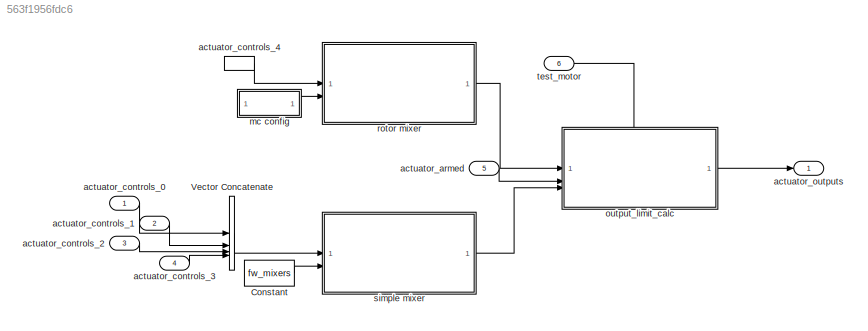
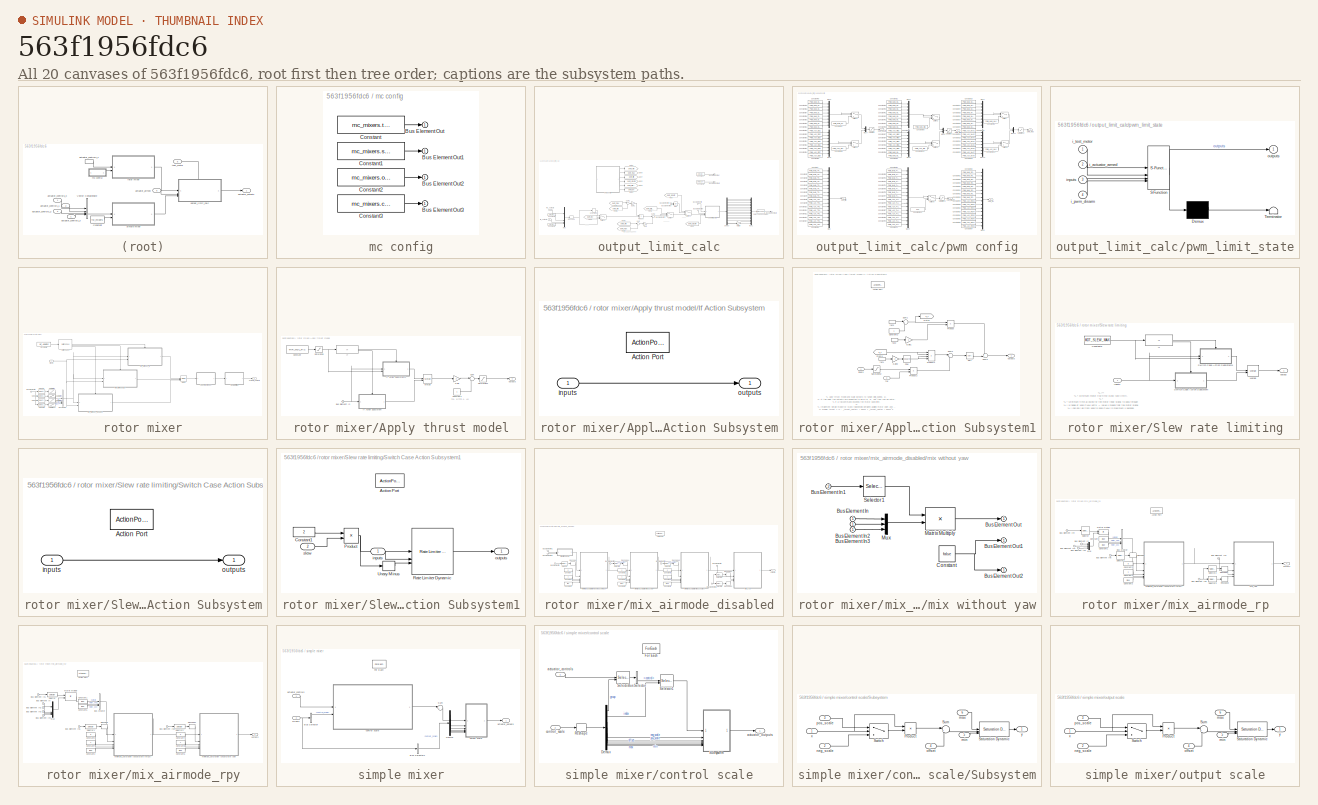
[diagram: thumbnail index - all 20 canvases of the model, root first then tree order]
MODEL slx_563f1956fdc6
KIND model
CONFIG AbsTol = auto
CONFIG EnableMultiTasking = off
CONFIG FixedStep = auto
CONFIG MaxStep = auto
CONFIG MinStep = auto
CONFIG RelTol = 1e-3
CONFIG SampleTimeConstraint = Unconstrained
CONFIG SolverName = VariableStepAuto
CONFIG StartTime = 0.0
CONFIG StopTime = 10.0
BLOCK [Constant] Constant
  OutDataTypeStr = Bus: fw_mixer_s
  Value = fw_mixers
BLOCK [Concatenate] Vector Concatenate
  NumInputs = 4
BLOCK [Inport] actuator_armed
  OutDataTypeStr = Bus: actuator_armed_s
  Port = 5
BLOCK [Inport] actuator_controls_0
  BusOutputAsStruct = on
  OutDataTypeStr = Bus: actuator_controls_s
BLOCK [Inport] actuator_controls_1
  BusOutputAsStruct = on
  OutDataTypeStr = Bus: actuator_controls_s
  Port = 2
BLOCK [Inport] actuator_controls_2
  BusOutputAsStruct = on
  OutDataTypeStr = Bus: actuator_controls_s
  Port = 3
BLOCK [Inport] actuator_controls_3
  BusOutputAsStruct = on
  OutDataTypeStr = Bus: actuator_controls_s
  Port = 4
BLOCK [InportShadow] actuator_controls_4
  BusOutputAsStruct = on
  OutDataTypeStr = Bus: actuator_controls_s
BLOCK [Outport] actuator_outputs
  OutDataTypeStr = Bus: actuator_outputs_s
BLOCK [SubSystem] mc config
BLOCK [Outport] mc config/Bus Element Out
BLOCK [Outport] mc config/Bus Element Out1
BLOCK [Outport] mc config/Bus Element Out2
BLOCK [Outport] mc config/Bus Element Out3
BLOCK [Constant] mc config/Constant
  Value = mc_mixers.type
BLOCK [Constant] mc config/Constant1
  Value = mc_mixers.slew_rate
BLOCK [Constant] mc config/Constant2
  Value = mc_mixers.output_scale
BLOCK [Constant] mc config/Constant3
  Value = mc_mixers.control_scale
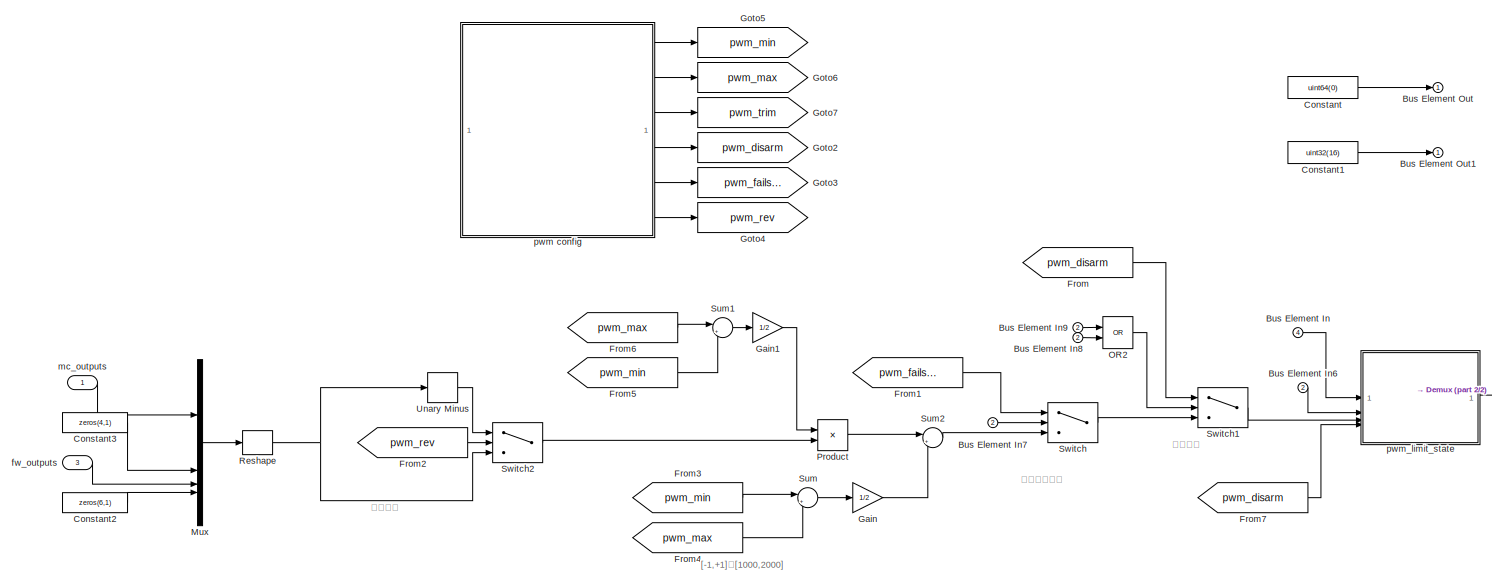
[diagram: output_limit_calc - part 1/2, most of the canvas]
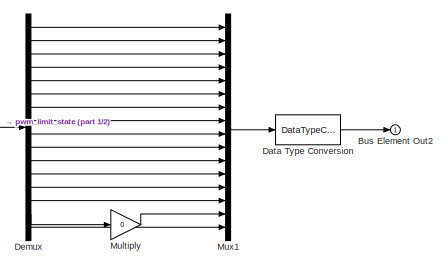
[diagram: output_limit_calc - part 2/2, bottom right region]
BLOCK [SubSystem] output_limit_calc
  PortSchema = {"entries":[{"content":{"sides":[{"content":{"connectorIds":["In1","In2","In3"]},"type":"ConnectorPlacement.EquallySpacedRectSide","uuid":"944c2c9d-30a8-426f-ab3c-b13e46dc869a"},{"content":{"connectorIds":["Out1"],"side":"RIGHT"},"type":"ConnectorPlacement.EquallySpacedRectSide","uuid":"8ff1d5b6-3575-4110-a07a-80dd000ae648"},{"content":{"connectorIds":["In4"],"side":"TOP"},"type":"ConnectorPlaceme...<+257ch>
BLOCK [Inport] output_limit_calc/Bus Element In
  Port = 4
BLOCK [Inport] output_limit_calc/Bus Element In6
  Port = 2
BLOCK [Inport] output_limit_calc/Bus Element In7
  Port = 2
BLOCK [Inport] output_limit_calc/Bus Element In8
  Port = 2
BLOCK [Inport] output_limit_calc/Bus Element In9
  Port = 2
BLOCK [Outport] output_limit_calc/Bus Element Out
BLOCK [Outport] output_limit_calc/Bus Element Out1
BLOCK [Outport] output_limit_calc/Bus Element Out2
BLOCK [Constant] output_limit_calc/Constant
  Value = uint64(0)
BLOCK [Constant] output_limit_calc/Constant1
  Value = uint32(16)
BLOCK [Constant] output_limit_calc/Constant2
  Value = zeros(6,1)
BLOCK [Constant] output_limit_calc/Constant3
  Value = zeros(4,1)
BLOCK [DataTypeConversion] output_limit_calc/Data Type Conversion
  RndMeth = Floor
  SaturateOnIntegerOverflow = off
BLOCK [Demux] output_limit_calc/Demux
  Outputs = 16
BLOCK [From] output_limit_calc/From
  GotoTag = pwm_disarm
BLOCK [From] output_limit_calc/From1
  GotoTag = pwm_failsafe
BLOCK [From] output_limit_calc/From2
  GotoTag = pwm_rev
BLOCK [From] output_limit_calc/From3
  GotoTag = pwm_min
BLOCK [From] output_limit_calc/From4
  GotoTag = pwm_max
BLOCK [From] output_limit_calc/From5
  GotoTag = pwm_min
BLOCK [From] output_limit_calc/From6
  GotoTag = pwm_max
BLOCK [From] output_limit_calc/From7
  GotoTag = pwm_disarm
BLOCK [Gain] output_limit_calc/Gain
  Gain = 1/2
BLOCK [Gain] output_limit_calc/Gain1
  Gain = 1/2
BLOCK [Goto] output_limit_calc/Goto2
  GotoTag = pwm_disarm
BLOCK [Goto] output_limit_calc/Goto3
  GotoTag = pwm_failsafe
BLOCK [Goto] output_limit_calc/Goto4
  GotoTag = pwm_rev
BLOCK [Goto] output_limit_calc/Goto5
  GotoTag = pwm_min
BLOCK [Goto] output_limit_calc/Goto6
  GotoTag = pwm_max
BLOCK [Goto] output_limit_calc/Goto7
  GotoTag = pwm_trim
BLOCK [Gain] output_limit_calc/Multiply
  Gain = 0
BLOCK [Mux] output_limit_calc/Mux
  DisplayOption = bar
BLOCK [Mux] output_limit_calc/Mux1
  DisplayOption = bar
  Inputs = 16
BLOCK [Logic] output_limit_calc/OR2
  AllPortsSameDT = off
  IconShape = distinctive
  Operator = OR
  OutDataTypeStr = boolean
BLOCK [Product] output_limit_calc/Product
BLOCK [Reshape] output_limit_calc/Reshape
BLOCK [Sum] output_limit_calc/Sum
  Inputs = |++
BLOCK [Sum] output_limit_calc/Sum1
  Inputs = |+-
BLOCK [Sum] output_limit_calc/Sum2
  Inputs = |++
BLOCK [Switch] output_limit_calc/Switch
  Criteria = u2 > Threshold
  InputSameDT = off
  SaturateOnIntegerOverflow = off
BLOCK [Switch] output_limit_calc/Switch1
  Criteria = u2 > Threshold
  InputSameDT = off
  SaturateOnIntegerOverflow = off
BLOCK [Switch] output_limit_calc/Switch2
  Criteria = u2 ~= 0
  InputSameDT = off
  SaturateOnIntegerOverflow = off
BLOCK [UnaryMinus] output_limit_calc/Unary Minus
BLOCK [Inport] output_limit_calc/fw_outputs
  Port = 3
BLOCK [Inport] output_limit_calc/mc_outputs
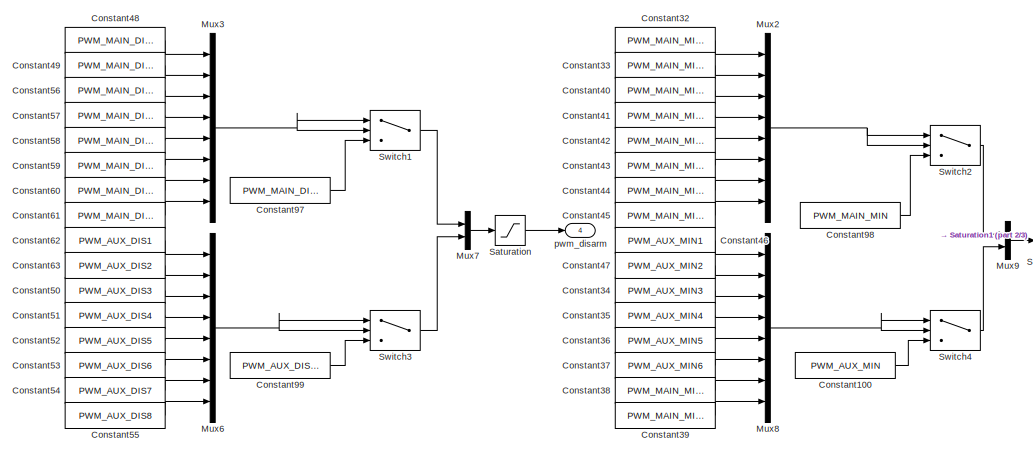
[diagram: output_limit_calc/pwm config - part 1/3, top left region]
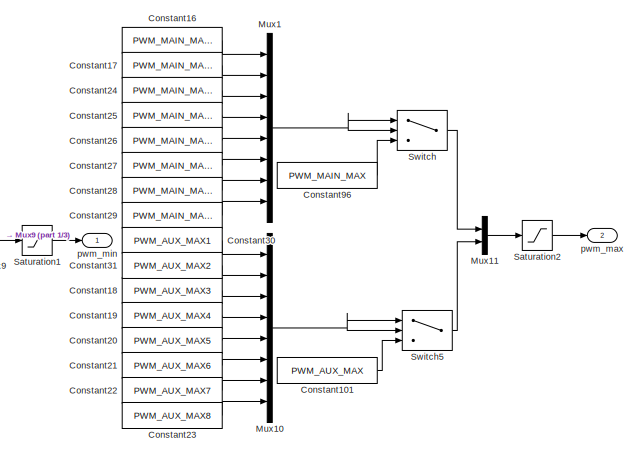
[diagram: output_limit_calc/pwm config - part 2/3, top right region]
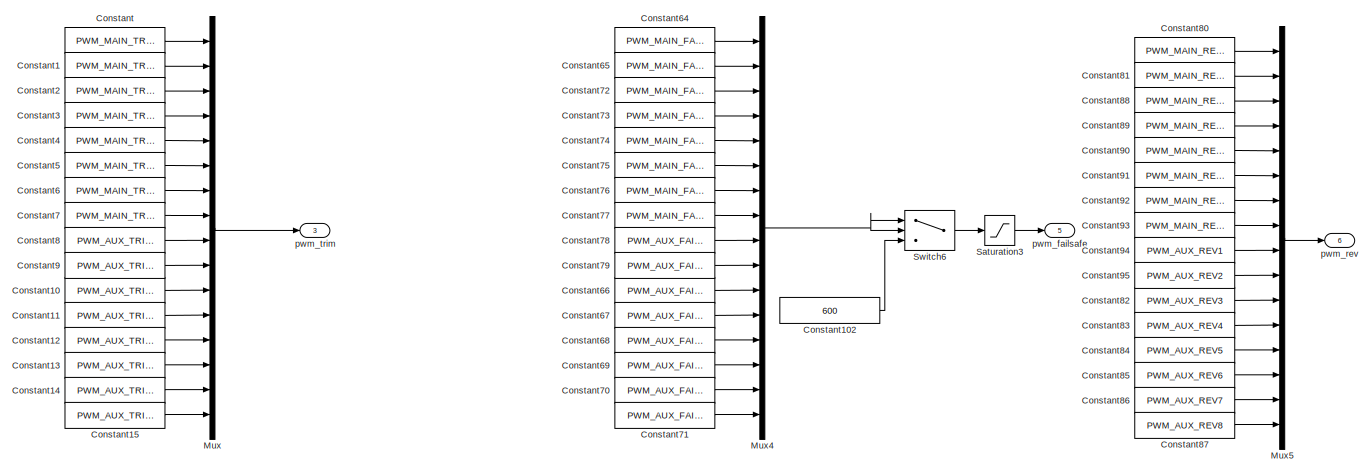
[diagram: output_limit_calc/pwm config - part 3/3, full width, bottom band]
BLOCK [SubSystem] output_limit_calc/pwm config
BLOCK [Constant] output_limit_calc/pwm config/Constant
  Value = PWM_MAIN_TRIM1
BLOCK [Constant] output_limit_calc/pwm config/Constant1
  Value = PWM_MAIN_TRIM2
BLOCK [Constant] output_limit_calc/pwm config/Constant10
  Value = PWM_AUX_TRIM3
BLOCK [Constant] output_limit_calc/pwm config/Constant100
  Value = PWM_AUX_MIN
BLOCK [Constant] output_limit_calc/pwm config/Constant101
  Value = PWM_AUX_MAX
BLOCK [Constant] output_limit_calc/pwm config/Constant102
  OutDataTypeStr = int32
  Value = 600
BLOCK [Constant] output_limit_calc/pwm config/Constant11
  Value = PWM_AUX_TRIM4
BLOCK [Constant] output_limit_calc/pwm config/Constant12
  Value = PWM_AUX_TRIM5
BLOCK [Constant] output_limit_calc/pwm config/Constant13
  Value = PWM_AUX_TRIM6
BLOCK [Constant] output_limit_calc/pwm config/Constant14
  Value = PWM_AUX_TRIM7
BLOCK [Constant] output_limit_calc/pwm config/Constant15
  Value = PWM_AUX_TRIM8
BLOCK [Constant] output_limit_calc/pwm config/Constant16
  Value = PWM_MAIN_MAX1
BLOCK [Constant] output_limit_calc/pwm config/Constant17
  Value = PWM_MAIN_MAX2
BLOCK [Constant] output_limit_calc/pwm config/Constant18
  Value = PWM_AUX_MAX3
BLOCK [Constant] output_limit_calc/pwm config/Constant19
  Value = PWM_AUX_MAX4
BLOCK [Constant] output_limit_calc/pwm config/Constant2
  Value = PWM_MAIN_TRIM3
BLOCK [Constant] output_limit_calc/pwm config/Constant20
  Value = PWM_AUX_MAX5
BLOCK [Constant] output_limit_calc/pwm config/Constant21
  Value = PWM_AUX_MAX6
BLOCK [Constant] output_limit_calc/pwm config/Constant22
  Value = PWM_AUX_MAX7
BLOCK [Constant] output_limit_calc/pwm config/Constant23
  Value = PWM_AUX_MAX8
BLOCK [Constant] output_limit_calc/pwm config/Constant24
  Value = PWM_MAIN_MAX3
BLOCK [Constant] output_limit_calc/pwm config/Constant25
  Value = PWM_MAIN_MAX4
BLOCK [Constant] output_limit_calc/pwm config/Constant26
  Value = PWM_MAIN_MAX5
BLOCK [Constant] output_limit_calc/pwm config/Constant27
  Value = PWM_MAIN_MAX6
BLOCK [Constant] output_limit_calc/pwm config/Constant28
  Value = PWM_MAIN_MAX7
BLOCK [Constant] output_limit_calc/pwm config/Constant29
  Value = PWM_MAIN_MAX8
BLOCK [Constant] output_limit_calc/pwm config/Constant3
  Value = PWM_MAIN_TRIM4
BLOCK [Constant] output_limit_calc/pwm config/Constant30
  Value = PWM_AUX_MAX1
BLOCK [Constant] output_limit_calc/pwm config/Constant31
  Value = PWM_AUX_MAX2
BLOCK [Constant] output_limit_calc/pwm config/Constant32
  Value = PWM_MAIN_MIN1
BLOCK [Constant] output_limit_calc/pwm config/Constant33
  Value = PWM_MAIN_MIN2
BLOCK [Constant] output_limit_calc/pwm config/Constant34
  Value = PWM_AUX_MIN3
BLOCK [Constant] output_limit_calc/pwm config/Constant35
  Value = PWM_AUX_MIN4
BLOCK [Constant] output_limit_calc/pwm config/Constant36
  Value = PWM_AUX_MIN5
BLOCK [Constant] output_limit_calc/pwm config/Constant37
  Value = PWM_AUX_MIN6
BLOCK [Constant] output_limit_calc/pwm config/Constant38
  Value = PWM_MAIN_MIN7
BLOCK [Constant] output_limit_calc/pwm config/Constant39
  Value = PWM_MAIN_MIN8
BLOCK [Constant] output_limit_calc/pwm config/Constant4
  Value = PWM_MAIN_TRIM5
BLOCK [Constant] output_limit_calc/pwm config/Constant40
  Value = PWM_MAIN_MIN3
BLOCK [Constant] output_limit_calc/pwm config/Constant41
  Value = PWM_MAIN_MIN4
BLOCK [Constant] output_limit_calc/pwm config/Constant42
  Value = PWM_MAIN_MIN5
BLOCK [Constant] output_limit_calc/pwm config/Constant43
  Value = PWM_MAIN_MIN6
BLOCK [Constant] output_limit_calc/pwm config/Constant44
  Value = PWM_MAIN_MIN7
BLOCK [Constant] output_limit_calc/pwm config/Constant45
  Value = PWM_MAIN_MIN8
BLOCK [Constant] output_limit_calc/pwm config/Constant46
  Value = PWM_AUX_MIN1
BLOCK [Constant] output_limit_calc/pwm config/Constant47
  Value = PWM_AUX_MIN2
BLOCK [Constant] output_limit_calc/pwm config/Constant48
  Value = PWM_MAIN_DIS1
BLOCK [Constant] output_limit_calc/pwm config/Constant49
  Value = PWM_MAIN_DIS2
BLOCK [Constant] output_limit_calc/pwm config/Constant5
  Value = PWM_MAIN_TRIM6
BLOCK [Constant] output_limit_calc/pwm config/Constant50
  Value = PWM_AUX_DIS3
BLOCK [Constant] output_limit_calc/pwm config/Constant51
  Value = PWM_AUX_DIS4
BLOCK [Constant] output_limit_calc/pwm config/Constant52
  Value = PWM_AUX_DIS5
BLOCK [Constant] output_limit_calc/pwm config/Constant53
  Value = PWM_AUX_DIS6
BLOCK [Constant] output_limit_calc/pwm config/Constant54
  Value = PWM_AUX_DIS7
BLOCK [Constant] output_limit_calc/pwm config/Constant55
  Value = PWM_AUX_DIS8
BLOCK [Constant] output_limit_calc/pwm config/Constant56
  Value = PWM_MAIN_DIS3
BLOCK [Constant] output_limit_calc/pwm config/Constant57
  Value = PWM_MAIN_DIS4
BLOCK [Constant] output_limit_calc/pwm config/Constant58
  Value = PWM_MAIN_DIS5
BLOCK [Constant] output_limit_calc/pwm config/Constant59
  Value = PWM_MAIN_DIS6
BLOCK [Constant] output_limit_calc/pwm config/Constant6
  Value = PWM_MAIN_TRIM7
BLOCK [Constant] output_limit_calc/pwm config/Constant60
  Value = PWM_MAIN_DIS7
BLOCK [Constant] output_limit_calc/pwm config/Constant61
  Value = PWM_MAIN_DIS8
BLOCK [Constant] output_limit_calc/pwm config/Constant62
  Value = PWM_AUX_DIS1
BLOCK [Constant] output_limit_calc/pwm config/Constant63
  Value = PWM_AUX_DIS2
BLOCK [Constant] output_limit_calc/pwm config/Constant64
  Value = PWM_MAIN_FAIL1
BLOCK [Constant] output_limit_calc/pwm config/Constant65
  Value = PWM_MAIN_FAIL2
BLOCK [Constant] output_limit_calc/pwm config/Constant66
  Value = PWM_AUX_FAIL3
BLOCK [Constant] output_limit_calc/pwm config/Constant67
  Value = PWM_AUX_FAIL4
BLOCK [Constant] output_limit_calc/pwm config/Constant68
  Value = PWM_AUX_FAIL5
BLOCK [Constant] output_limit_calc/pwm config/Constant69
  Value = PWM_AUX_FAIL6
BLOCK [Constant] output_limit_calc/pwm config/Constant7
  Value = PWM_MAIN_TRIM8
BLOCK [Constant] output_limit_calc/pwm config/Constant70
  Value = PWM_AUX_FAIL7
BLOCK [Constant] output_limit_calc/pwm config/Constant71
  Value = PWM_AUX_FAIL8
BLOCK [Constant] output_limit_calc/pwm config/Constant72
  Value = PWM_MAIN_FAIL3
BLOCK [Constant] output_limit_calc/pwm config/Constant73
  Value = PWM_MAIN_FAIL4
BLOCK [Constant] output_limit_calc/pwm config/Constant74
  Value = PWM_MAIN_FAIL5
BLOCK [Constant] output_limit_calc/pwm config/Constant75
  Value = PWM_MAIN_FAIL6
BLOCK [Constant] output_limit_calc/pwm config/Constant76
  Value = PWM_MAIN_FAIL7
BLOCK [Constant] output_limit_calc/pwm config/Constant77
  Value = PWM_MAIN_FAIL8
BLOCK [Constant] output_limit_calc/pwm config/Constant78
  Value = PWM_AUX_FAIL1
BLOCK [Constant] output_limit_calc/pwm config/Constant79
  Value = PWM_AUX_FAIL2
BLOCK [Constant] output_limit_calc/pwm config/Constant8
  Value = PWM_AUX_TRIM1
BLOCK [Constant] output_limit_calc/pwm config/Constant80
  Value = PWM_MAIN_REV1
BLOCK [Constant] output_limit_calc/pwm config/Constant81
  Value = PWM_MAIN_REV2
BLOCK [Constant] output_limit_calc/pwm config/Constant82
  Value = PWM_AUX_REV3
BLOCK [Constant] output_limit_calc/pwm config/Constant83
  Value = PWM_AUX_REV4
BLOCK [Constant] output_limit_calc/pwm config/Constant84
  Value = PWM_AUX_REV5
BLOCK [Constant] output_limit_calc/pwm config/Constant85
  Value = PWM_AUX_REV6
BLOCK [Constant] output_limit_calc/pwm config/Constant86
  Value = PWM_AUX_REV7
BLOCK [Constant] output_limit_calc/pwm config/Constant87
  Value = PWM_AUX_REV8
BLOCK [Constant] output_limit_calc/pwm config/Constant88
  Value = PWM_MAIN_REV3
BLOCK [Constant] output_limit_calc/pwm config/Constant89
  Value = PWM_MAIN_REV4
BLOCK [Constant] output_limit_calc/pwm config/Constant9
  Value = PWM_AUX_TRIM2
BLOCK [Constant] output_limit_calc/pwm config/Constant90
  Value = PWM_MAIN_REV5
BLOCK [Constant] output_limit_calc/pwm config/Constant91
  Value = PWM_MAIN_REV6
BLOCK [Constant] output_limit_calc/pwm config/Constant92
  Value = PWM_MAIN_REV7
BLOCK [Constant] output_limit_calc/pwm config/Constant93
  Value = PWM_MAIN_REV8
BLOCK [Constant] output_limit_calc/pwm config/Constant94
  Value = PWM_AUX_REV1
BLOCK [Constant] output_limit_calc/pwm config/Constant95
  Value = PWM_AUX_REV2
BLOCK [Constant] output_limit_calc/pwm config/Constant96
  Value = PWM_MAIN_MAX
BLOCK [Constant] output_limit_calc/pwm config/Constant97
  Value = PWM_MAIN_DISARM
BLOCK [Constant] output_limit_calc/pwm config/Constant98
  Value = PWM_MAIN_MIN
BLOCK [Constant] output_limit_calc/pwm config/Constant99
  Value = PWM_AUX_DISARM
BLOCK [Mux] output_limit_calc/pwm config/Mux
  DisplayOption = bar
  Inputs = 16
BLOCK [Mux] output_limit_calc/pwm config/Mux1
  DisplayOption = bar
  Inputs = 8
BLOCK [Mux] output_limit_calc/pwm config/Mux10
  DisplayOption = bar
  Inputs = 8
BLOCK [Mux] output_limit_calc/pwm config/Mux11
  DisplayOption = bar
  Inputs = 2
BLOCK [Mux] output_limit_calc/pwm config/Mux2
  DisplayOption = bar
  Inputs = 8
BLOCK [Mux] output_limit_calc/pwm config/Mux3
  DisplayOption = bar
  Inputs = 8
BLOCK [Mux] output_limit_calc/pwm config/Mux4
  DisplayOption = bar
  Inputs = 16
BLOCK [Mux] output_limit_calc/pwm config/Mux5
  DisplayOption = bar
  Inputs = 16
BLOCK [Mux] output_limit_calc/pwm config/Mux6
  DisplayOption = bar
  Inputs = 8
BLOCK [Mux] output_limit_calc/pwm config/Mux7
  DisplayOption = bar
  Inputs = 2
BLOCK [Mux] output_limit_calc/pwm config/Mux8
  DisplayOption = bar
  Inputs = 8
BLOCK [Mux] output_limit_calc/pwm config/Mux9
  DisplayOption = bar
  Inputs = 2
BLOCK [Saturate] output_limit_calc/pwm config/Saturation
  LowerLimit = 0
  UpperLimit = 2500
BLOCK [Saturate] output_limit_calc/pwm config/Saturation1
  LowerLimit = 90
  UpperLimit = 1600
BLOCK [Saturate] output_limit_calc/pwm config/Saturation2
  LowerLimit = 200
  UpperLimit = 2500
BLOCK [Saturate] output_limit_calc/pwm config/Saturation3
  LowerLimit = 0
  UpperLimit = 2500
BLOCK [Switch] output_limit_calc/pwm config/Switch
  Criteria = u2 > Threshold
  InputSameDT = off
  SaturateOnIntegerOverflow = off
BLOCK [Switch] output_limit_calc/pwm config/Switch1
  Criteria = u2 > Threshold
  InputSameDT = off
  SaturateOnIntegerOverflow = off
BLOCK [Switch] output_limit_calc/pwm config/Switch2
  Criteria = u2 > Threshold
  InputSameDT = off
  SaturateOnIntegerOverflow = off
BLOCK [Switch] output_limit_calc/pwm config/Switch3
  Criteria = u2 > Threshold
  InputSameDT = off
  SaturateOnIntegerOverflow = off
BLOCK [Switch] output_limit_calc/pwm config/Switch4
  Criteria = u2 > Threshold
  InputSameDT = off
  SaturateOnIntegerOverflow = off
BLOCK [Switch] output_limit_calc/pwm config/Switch5
  Criteria = u2 > Threshold
  InputSameDT = off
  SaturateOnIntegerOverflow = off
BLOCK [Switch] output_limit_calc/pwm config/Switch6
  Criteria = u2 > Threshold
  InputSameDT = off
  SaturateOnIntegerOverflow = off
BLOCK [Outport] output_limit_calc/pwm config/pwm_disarm
  Port = 4
BLOCK [Outport] output_limit_calc/pwm config/pwm_failsafe
  Port = 5
BLOCK [Outport] output_limit_calc/pwm config/pwm_max
  Port = 2
BLOCK [Outport] output_limit_calc/pwm config/pwm_min
BLOCK [Outport] output_limit_calc/pwm config/pwm_rev
  Port = 6
BLOCK [Outport] output_limit_calc/pwm config/pwm_trim
  Port = 3
BLOCK [SubSystem] output_limit_calc/pwm_limit_state
  ErrorFcn = Stateflow.Translate.translate
  PermitHierarchicalResolution = ExplicitOnly
  SFBlockType = Chart
  TreatAsAtomicUnit = on
BLOCK [Demux] output_limit_calc/pwm_limit_state/ Demux 
  Outputs = 1
BLOCK [S-Function] output_limit_calc/pwm_limit_state/ SFunction 
  EnableBusSupport = on
  FunctionName = sf_sfun
  PortCounts = [4 2]
  SFcnIsStateOwnerBlock = off
  SFunctionDeploymentMode = off
  Tag = Stateflow S-Function 3
BLOCK [Terminator] output_limit_calc/pwm_limit_state/ Terminator 
BLOCK [Inport] output_limit_calc/pwm_limit_state/i_actuator_armed
  Port = 2
BLOCK [Inport] output_limit_calc/pwm_limit_state/i_pwm_disarm
  Port = 4
BLOCK [Inport] output_limit_calc/pwm_limit_state/i_test_motor
BLOCK [Inport] output_limit_calc/pwm_limit_state/inputs
  Port = 3
BLOCK [Outport] output_limit_calc/pwm_limit_state/outputs
BLOCK [SubSystem] rotor mixer
BLOCK [SubSystem] rotor mixer/Apply thrust model
BLOCK [Inport] rotor mixer/Apply thrust model/Bus Element In
BLOCK [Constant] rotor mixer/Apply thrust model/Constant
  Value = THR_MDL_FAC
BLOCK [Constant] rotor mixer/Apply thrust model/Constant1
BLOCK [Gain] rotor mixer/Apply thrust model/Gain
  Gain = 2
BLOCK [If] rotor mixer/Apply thrust model/If
  IfExpression = u1 > eps
BLOCK [SubSystem] rotor mixer/Apply thrust model/If Action Subsystem
  TreatAsAtomicUnit = on
BLOCK [ActionPort] rotor mixer/Apply thrust model/If Action Subsystem/Action Port
  ActionPortLabel = else
BLOCK [Inport] rotor mixer/Apply thrust model/If Action Subsystem/inputs
BLOCK [Outport] rotor mixer/Apply thrust model/If Action Subsystem/outputs
BLOCK [SubSystem] rotor mixer/Apply thrust model/If Action Subsystem1
  TreatAsAtomicUnit = on
BLOCK [ActionPort] rotor mixer/Apply thrust model/If Action Subsystem1/Action Port
  ActionPortLabel = if(u1 > eps)
BLOCK [Constant] rotor mixer/Apply thrust model/If Action Subsystem1/Constant2
BLOCK [From] rotor mixer/Apply thrust model/If Action Subsystem1/From3
  GotoTag = K_1
BLOCK [Gain] rotor mixer/Apply thrust model/If Action Subsystem1/Gain1
  Gain = 2
BLOCK [Gain] rotor mixer/Apply thrust model/If Action Subsystem1/Gain2
  Gain = 2
BLOCK [Goto] rotor mixer/Apply thrust model/If Action Subsystem1/Goto1
  GotoTag = K_1
BLOCK [Math] rotor mixer/Apply thrust model/If Action Subsystem1/Pow
  Operator = square
  RndMeth = Zero
  SignedPower = on
BLOCK [Product] rotor mixer/Apply thrust model/If Action Subsystem1/Product
  Inputs = */
BLOCK [Product] rotor mixer/Apply thrust model/If Action Subsystem1/Product1
  Inputs = **//
BLOCK [Product] rotor mixer/Apply thrust model/If Action Subsystem1/Product2
  Inputs = */
BLOCK [Saturate] rotor mixer/Apply thrust model/If Action Subsystem1/Saturation2
  LowerLimit = 0
  UpperLimit = inf
BLOCK [Sqrt] rotor mixer/Apply thrust model/If Action Subsystem1/Sqrt
BLOCK [Sum] rotor mixer/Apply thrust model/If Action Subsystem1/Sum1
  Inputs = |+-
BLOCK [Sum] rotor mixer/Apply thrust model/If Action Subsystem1/Sum2
  Inputs = |++
BLOCK [Sum] rotor mixer/Apply thrust model/If Action Subsystem1/Sum3
  Inputs = ++|
BLOCK [Inport] rotor mixer/Apply thrust model/If Action Subsystem1/fac
  Port = 2
BLOCK [InportShadow] rotor mixer/Apply thrust model/If Action Subsystem1/fac1
  Port = 2
BLOCK [InportShadow] rotor mixer/Apply thrust model/If Action Subsystem1/fac2
  Port = 2
BLOCK [InportShadow] rotor mixer/Apply thrust model/If Action Subsystem1/fac3
  Port = 2
BLOCK [Inport] rotor mixer/Apply thrust model/If Action Subsystem1/inputs
BLOCK [Outport] rotor mixer/Apply thrust model/If Action Subsystem1/outputs
BLOCK [Merge] rotor mixer/Apply thrust model/Merge
BLOCK [Saturate] rotor mixer/Apply thrust model/Saturation
  LowerLimit = 0
  UpperLimit = 1
BLOCK [Saturate] rotor mixer/Apply thrust model/Saturation1
  LowerLimit = -1
  UpperLimit = 1
BLOCK [Sum] rotor mixer/Apply thrust model/Sum
  Inputs = |+-
BLOCK [Outport] rotor mixer/Apply thrust model/outputs
BLOCK [BusCreator] rotor mixer/Bus Creator
  DisplayOption = bar
  InheritFromInputs = on
  Inputs = 4
BLOCK [Inport] rotor mixer/Bus Element In
BLOCK [Constant] rotor mixer/Constant1
  Value = MC_AIRMODE
BLOCK [Merge] rotor mixer/Merge
  Inputs = 3
BLOCK [Saturate] rotor mixer/Saturation
  LowerLimit = -1
  UpperLimit = 1
BLOCK [Saturate] rotor mixer/Saturation1
  LowerLimit = -1
  UpperLimit = 1
BLOCK [Saturate] rotor mixer/Saturation2
  LowerLimit = -1
  UpperLimit = 1
BLOCK [Saturate] rotor mixer/Saturation3
  LowerLimit = 0
  UpperLimit = 1
BLOCK [Selector] rotor mixer/Selector
  IndexOptions = Index vector (dialog)
  Indices = 1
  InputPortWidth = 8
  OutputSizes = 1
BLOCK [Selector] rotor mixer/Selector1
  IndexOptions = Index vector (dialog)
  Indices = 2
  InputPortWidth = 8
  OutputSizes = 1
BLOCK [Selector] rotor mixer/Selector2
  IndexOptions = Index vector (dialog)
  Indices = 3
  InputPortWidth = 8
  OutputSizes = 1
BLOCK [Selector] rotor mixer/Selector3
  IndexOptions = Index vector (dialog)
  Indices = 4
  InputPortWidth = 8
  OutputSizes = 1
BLOCK [SubSystem] rotor mixer/Slew rate limiting
BLOCK [Constant] rotor mixer/Slew rate limiting/Constant9
  Value = MOT_SLEW_MAX
BLOCK [If] rotor mixer/Slew rate limiting/If
  IfExpression = u1 > eps
BLOCK [Merge] rotor mixer/Slew rate limiting/Merge
BLOCK [SubSystem] rotor mixer/Slew rate limiting/Switch Case Action Subsystem
  TreatAsAtomicUnit = on
BLOCK [ActionPort] rotor mixer/Slew rate limiting/Switch Case Action Subsystem/Action Port
  ActionPortLabel = else
BLOCK [Inport] rotor mixer/Slew rate limiting/Switch Case Action Subsystem/inputs
BLOCK [Outport] rotor mixer/Slew rate limiting/Switch Case Action Subsystem/outputs
BLOCK [SubSystem] rotor mixer/Slew rate limiting/Switch Case Action Subsystem1
  TreatAsAtomicUnit = on
BLOCK [ActionPort] rotor mixer/Slew rate limiting/Switch Case Action Subsystem1/Action Port
  ActionPortLabel = if(u1 > eps)
BLOCK [Constant] rotor mixer/Slew rate limiting/Switch Case Action Subsystem1/Constant1
  Value = 2
BLOCK [Product] rotor mixer/Slew rate limiting/Switch Case Action Subsystem1/Product
  Inputs = */
BLOCK [Reference] rotor mixer/Slew rate limiting/Switch Case Action Subsystem1/Rate Limiter Dynamic  REF=simulink/Discontinuities/Rate Limiter
Dynamic
  SourceBlock = simulink/Discontinuities/Rate Limiter\nDynamic
  SourceType = Rate Limiter Dynamic
BLOCK [UnaryMinus] rotor mixer/Slew rate limiting/Switch Case Action Subsystem1/Unary Minus
BLOCK [Inport] rotor mixer/Slew rate limiting/Switch Case Action Subsystem1/inputs
BLOCK [Outport] rotor mixer/Slew rate limiting/Switch Case Action Subsystem1/outputs
BLOCK [Inport] rotor mixer/Slew rate limiting/Switch Case Action Subsystem1/slew
  Port = 2
BLOCK [Inport] rotor mixer/Slew rate limiting/inputs
BLOCK [Outport] rotor mixer/Slew rate limiting/outpus
BLOCK [SwitchCase] rotor mixer/Switch Case
  CaseConditions = {1,2}
BLOCK [Outport] rotor mixer/actuator_outputs
BLOCK [SubSystem] rotor mixer/mix_airmode_disabled
  TreatAsAtomicUnit = on
BLOCK [ActionPort] rotor mixer/mix_airmode_disabled/Action Port
  ActionPortLabel = default:
BLOCK [Inport] rotor mixer/mix_airmode_disabled/Bus Element In
  Port = 2
BLOCK [Inport] rotor mixer/mix_airmode_disabled/Bus Element In1
BLOCK [Inport] rotor mixer/mix_airmode_disabled/Bus Element In2
  Port = 2
BLOCK [Inport] rotor mixer/mix_airmode_disabled/Bus Element In3
  Port = 2
BLOCK [Inport] rotor mixer/mix_airmode_disabled/Bus Element In4
  Port = 2
BLOCK [Inport] rotor mixer/mix_airmode_disabled/Bus Element In5
  Port = 2
BLOCK [Inport] rotor mixer/mix_airmode_disabled/BusElementIn
BLOCK [Constant] rotor mixer/mix_airmode_disabled/Constant
  Value = 0
BLOCK [Constant] rotor mixer/mix_airmode_disabled/Constant1
BLOCK [Constant] rotor mixer/mix_airmode_disabled/Constant2
  Value = true
BLOCK [Constant] rotor mixer/mix_airmode_disabled/Constant3
  Value = 0
BLOCK [Constant] rotor mixer/mix_airmode_disabled/Constant4
BLOCK [Constant] rotor mixer/mix_airmode_disabled/Constant5
  Value = false
BLOCK [Constant] rotor mixer/mix_airmode_disabled/Constant6
  Value = 0
BLOCK [Constant] rotor mixer/mix_airmode_disabled/Constant7
BLOCK [Constant] rotor mixer/mix_airmode_disabled/Constant8
  Value = false
BLOCK [Reshape] rotor mixer/mix_airmode_disabled/Reshape
BLOCK [Reshape] rotor mixer/mix_airmode_disabled/Reshape1
BLOCK [Reshape] rotor mixer/mix_airmode_disabled/Reshape2
BLOCK [Reshape] rotor mixer/mix_airmode_disabled/Reshape3
BLOCK [Reshape] rotor mixer/mix_airmode_disabled/Reshape4
BLOCK [Selector] rotor mixer/mix_airmode_disabled/Selector
  IndexOptions = Select all,Index vector (dialog)
  Indices = [1 3],4
  InputPortWidth = 3
  NumberOfDimensions = 2
  OutputSizes = 1,1
BLOCK [Selector] rotor mixer/mix_airmode_disabled/Selector2
  IndexOptions = Select all,Index vector (dialog)
  Indices = [1 3],1
  InputPortWidth = 3
  NumberOfDimensions = 2
  OutputSizes = 1,1
BLOCK [Selector] rotor mixer/mix_airmode_disabled/Selector3
  IndexOptions = Select all,Index vector (dialog)
  Indices = [1 3],2
  InputPortWidth = 3
  NumberOfDimensions = 2
  OutputSizes = 1,1
BLOCK [Selector] rotor mixer/mix_airmode_disabled/Selector4
  IndexOptions = Select all,Index vector (dialog)
  Indices = [1 3],3
  InputPortWidth = 3
  NumberOfDimensions = 2
  OutputSizes = 1,1
BLOCK [Selector] rotor mixer/mix_airmode_disabled/Selector5
  IndexOptions = Select all,Index vector (dialog)
  Indices = [1 3],4
  InputPortWidth = 3
  NumberOfDimensions = 2
  OutputSizes = 1,1
BLOCK [SubSystem] rotor mixer/mix_airmode_disabled/minimize_saturation (only reduce thrust)
  ReferencedSubsystem = subref_minimize_saturation
BLOCK [SubSystem] rotor mixer/mix_airmode_disabled/minimize_saturation (reduce pitch)
  ReferencedSubsystem = subref_minimize_saturation
BLOCK [SubSystem] rotor mixer/mix_airmode_disabled/minimize_saturation (reduce roll)
  ReferencedSubsystem = subref_minimize_saturation
BLOCK [SubSystem] rotor mixer/mix_airmode_disabled/mix without yaw
BLOCK [Inport] rotor mixer/mix_airmode_disabled/mix without yaw/Bus Element In
BLOCK [Inport] rotor mixer/mix_airmode_disabled/mix without yaw/Bus Element In1
  Port = 2
BLOCK [Inport] rotor mixer/mix_airmode_disabled/mix without yaw/Bus Element In2
BLOCK [Inport] rotor mixer/mix_airmode_disabled/mix without yaw/Bus Element In3
BLOCK [Outport] rotor mixer/mix_airmode_disabled/mix without yaw/Bus Element Out
BLOCK [Outport] rotor mixer/mix_airmode_disabled/mix without yaw/Bus Element Out1
BLOCK [Outport] rotor mixer/mix_airmode_disabled/mix without yaw/Bus Element Out2
BLOCK [Constant] rotor mixer/mix_airmode_disabled/mix without yaw/Constant
  Value = false
BLOCK [Product] rotor mixer/mix_airmode_disabled/mix without yaw/Matrix Multiply
  Multiplication = Matrix(*)
BLOCK [Mux] rotor mixer/mix_airmode_disabled/mix without yaw/Mux
  DisplayOption = bar
  Inputs = 3
BLOCK [Selector] rotor mixer/mix_airmode_disabled/mix without yaw/Selector1
  IndexOptions = Select all,Index vector (dialog)
  Indices = [1 3],[1 2 4]
  InputPortWidth = 3
  NumberOfDimensions = 2
  OutputSizes = 1,1
BLOCK [SubSystem] rotor mixer/mix_airmode_disabled/mix_yaw
  ReferencedSubsystem = subref_mix_yaw
BLOCK [Outport] rotor mixer/mix_airmode_disabled/outputs
BLOCK [SubSystem] rotor mixer/mix_airmode_rp
  TreatAsAtomicUnit = on
BLOCK [ActionPort] rotor mixer/mix_airmode_rp/Action Port
  ActionPortLabel = case [ 1 ]:
BLOCK [BusCreator] rotor mixer/mix_airmode_rp/Bus Creator
  DisplayOption = bar
  InheritFromInputs = on
  Inputs = 3
BLOCK [Inport] rotor mixer/mix_airmode_rp/Bus Element In
BLOCK [Inport] rotor mixer/mix_airmode_rp/Bus Element In1
BLOCK [Inport] rotor mixer/mix_airmode_rp/Bus Element In2
BLOCK [Inport] rotor mixer/mix_airmode_rp/Bus Element In3
BLOCK [Inport] rotor mixer/mix_airmode_rp/Bus Element In4
  Port = 2
BLOCK [Inport] rotor mixer/mix_airmode_rp/Bus Element In5
  Port = 2
BLOCK [Inport] rotor mixer/mix_airmode_rp/Bus Element In6
  Port = 2
BLOCK [Constant] rotor mixer/mix_airmode_rp/Constant
  Value = false
BLOCK [Constant] rotor mixer/mix_airmode_rp/Constant1
  Value = false
BLOCK [Constant] rotor mixer/mix_airmode_rp/Constant2
  Value = false
BLOCK [Constant] rotor mixer/mix_airmode_rp/Constant3
  Value = 0
BLOCK [Constant] rotor mixer/mix_airmode_rp/Constant4
BLOCK [Product] rotor mixer/mix_airmode_rp/Matrix Multiply
  Multiplication = Matrix(*)
BLOCK [Mux] rotor mixer/mix_airmode_rp/Mux
  DisplayOption = bar
  Inputs = 3
BLOCK [Reshape] rotor mixer/mix_airmode_rp/Reshape
BLOCK [Reshape] rotor mixer/mix_airmode_rp/Reshape1
BLOCK [Reshape] rotor mixer/mix_airmode_rp/Reshape2
BLOCK [Selector] rotor mixer/mix_airmode_rp/Selector
  IndexOptions = Select all,Index vector (dialog)
  Indices = [1 3],[1 2 4]
  InputPortWidth = 3
  NumberOfDimensions = 2
  OutputSizes = 1,1
BLOCK [Selector] rotor mixer/mix_airmode_rp/Selector1
  IndexOptions = Select all,Index vector (dialog)
  Indices = [1 3],4
  InputPortWidth = 3
  NumberOfDimensions = 2
  OutputSizes = 1,1
BLOCK [Selector] rotor mixer/mix_airmode_rp/Selector2
  IndexOptions = Select all,Index vector (dialog)
  Indices = [1 3],3
  InputPortWidth = 3
  NumberOfDimensions = 2
  OutputSizes = 1,1
BLOCK [Selector] rotor mixer/mix_airmode_rp/Selector3
  IndexOptions = Select all,Index vector (dialog)
  Indices = [1 3],4
  InputPortWidth = 3
  NumberOfDimensions = 2
  OutputSizes = 1,1
BLOCK [SubSystem] rotor mixer/mix_airmode_rp/minimize_saturation (unsaturate thrust)
  ReferencedSubsystem = subref_minimize_saturation
BLOCK [SubSystem] rotor mixer/mix_airmode_rp/mix_yaw
  ReferencedSubsystem = subref_mix_yaw
BLOCK [Outport] rotor mixer/mix_airmode_rp/outputs
BLOCK [SubSystem] rotor mixer/mix_airmode_rpy
  TreatAsAtomicUnit = on
BLOCK [ActionPort] rotor mixer/mix_airmode_rpy/Action Port
  ActionPortLabel = case [ 2 ]:
BLOCK [BusCreator] rotor mixer/mix_airmode_rpy/Bus Creator
  DisplayOption = bar
  InheritFromInputs = on
  Inputs = 3
BLOCK [Inport] rotor mixer/mix_airmode_rpy/Bus Element In
BLOCK [Inport] rotor mixer/mix_airmode_rpy/Bus Element In1
  Port = 2
BLOCK [Inport] rotor mixer/mix_airmode_rpy/Bus Element In2
BLOCK [Inport] rotor mixer/mix_airmode_rpy/Bus Element In3
BLOCK [Inport] rotor mixer/mix_airmode_rpy/Bus Element In4
BLOCK [Inport] rotor mixer/mix_airmode_rpy/Bus Element In5
  Port = 2
BLOCK [Inport] rotor mixer/mix_airmode_rpy/Bus Element In6
  Port = 2
BLOCK [Constant] rotor mixer/mix_airmode_rpy/Constant1
  Value = false
BLOCK [Constant] rotor mixer/mix_airmode_rpy/Constant2
  Value = false
BLOCK [Constant] rotor mixer/mix_airmode_rpy/Constant3
  Value = 0
BLOCK [Constant] rotor mixer/mix_airmode_rpy/Constant4
BLOCK [Constant] rotor mixer/mix_airmode_rpy/Constant5
  Value = false
BLOCK [Constant] rotor mixer/mix_airmode_rpy/Constant6
  Value = false
BLOCK [Constant] rotor mixer/mix_airmode_rpy/Constant7
  Value = 0
BLOCK [Constant] rotor mixer/mix_airmode_rpy/Constant8
BLOCK [Product] rotor mixer/mix_airmode_rpy/Matrix Multiply
  Multiplication = Matrix(*)
BLOCK [Mux] rotor mixer/mix_airmode_rpy/Mux
  DisplayOption = bar
BLOCK [Reshape] rotor mixer/mix_airmode_rpy/Reshape
BLOCK [Reshape] rotor mixer/mix_airmode_rpy/Reshape1
BLOCK [Selector] rotor mixer/mix_airmode_rpy/Selector
  IndexOptions = Select all,Index vector (dialog)
  Indices = [1 3],[1 2 3 4]
  InputPortWidth = 3
  NumberOfDimensions = 2
  OutputSizes = 1,1
BLOCK [Selector] rotor mixer/mix_airmode_rpy/Selector1
  IndexOptions = Select all,Index vector (dialog)
  Indices = [1 3],4
  InputPortWidth = 3
  NumberOfDimensions = 2
  OutputSizes = 1,1
BLOCK [Selector] rotor mixer/mix_airmode_rpy/Selector2
  IndexOptions = Select all,Index vector (dialog)
  Indices = [1 3],3
  InputPortWidth = 3
  NumberOfDimensions = 2
  OutputSizes = 1,1
BLOCK [SubSystem] rotor mixer/mix_airmode_rpy/minimize_saturation (unsaturate thrust)
  ReferencedSubsystem = subref_minimize_saturation
BLOCK [SubSystem] rotor mixer/mix_airmode_rpy/minimize_saturation (unsaturate yaw)
  ReferencedSubsystem = subref_minimize_saturation
BLOCK [Outport] rotor mixer/mix_airmode_rpy/outputs
BLOCK [Inport] rotor mixer/mixers
  Port = 2
BLOCK [SubSystem] simple mixer
  TreatAsAtomicUnit = on
BLOCK [BusSelector] simple mixer/Bus Selector
  OutputSignals = control_scale
BLOCK [BusSelector] simple mixer/Bus Selector1
  OutputSignals = output_scale
BLOCK [Demux] simple mixer/Demux
  Outputs = 5
BLOCK [ForEach] simple mixer/For Each
  DisableCoverage = on
BLOCK [Sum] simple mixer/Sum
  Inputs = 1
BLOCK [Inport] simple mixer/actuator_controls
  OutDataTypeStr = Bus: actuator_controls_s
BLOCK [Outport] simple mixer/actuator_outputs
  ConcatenationDimension = 1
BLOCK [SubSystem] simple mixer/control scale
BLOCK [BusSelector] simple mixer/control scale/Bus Selector
  OutputSignals = control
BLOCK [Demux] simple mixer/control scale/Demux
  Outputs = 7
BLOCK [ForEach] simple mixer/control scale/For Each
  DisableCoverage = on
BLOCK [Reshape] simple mixer/control scale/Reshape
BLOCK [Selector] simple mixer/control scale/Selector
  IndexMode = Zero-based
  IndexOptions = Index vector (port)
  Indices = [1 3]
  InputPortWidth = 4
  OutputSizes = 1
BLOCK [Selector] simple mixer/control scale/Selector1
  IndexMode = Zero-based
  IndexOptions = Index vector (port)
  Indices = [1 3]
  InputPortWidth = 8
  OutputSizes = 1
BLOCK [SubSystem] simple mixer/control scale/Subsystem
BLOCK [Product] simple mixer/control scale/Subsystem/Product
BLOCK [Reference] simple mixer/control scale/Subsystem/Saturation Dynamic  REF=simulink/Discontinuities/Saturation
Dynamic
  SourceBlock = simulink/Discontinuities/Saturation\nDynamic
  SourceType = Saturation Dynamic
BLOCK [Sum] simple mixer/control scale/Subsystem/Sum
  Inputs = |++
BLOCK [Switch] simple mixer/control scale/Subsystem/Switch
  Criteria = u2 > Threshold
  InputSameDT = off
  SaturateOnIntegerOverflow = off
BLOCK [Inport] simple mixer/control scale/Subsystem/max
  Port = 6
BLOCK [Inport] simple mixer/control scale/Subsystem/min
  Port = 5
BLOCK [Inport] simple mixer/control scale/Subsystem/neg_scale
  Port = 2
BLOCK [Inport] simple mixer/control scale/Subsystem/offset
  Port = 4
BLOCK [Inport] simple mixer/control scale/Subsystem/pos_scale
  Port = 3
BLOCK [Inport] simple mixer/control scale/Subsystem/x
BLOCK [Outport] simple mixer/control scale/Subsystem/y
BLOCK [Inport] simple mixer/control scale/actuator_controls
BLOCK [Outport] simple mixer/control scale/actuator_outputs
  ConcatenationDimension = 1
BLOCK [Inport] simple mixer/control scale/control_scale
  Partition = on
  PartitionDimension = 1
  PartitionOffset = 0
  PartitionWidth = 1
  Port = 2
BLOCK [Inport] simple mixer/mixers
  Partition = on
  PartitionDimension = 1
  PartitionOffset = 0
  PartitionWidth = 1
  Port = 2
BLOCK [SubSystem] simple mixer/output scale
BLOCK [Product] simple mixer/output scale/Product
BLOCK [Reference] simple mixer/output scale/Saturation Dynamic  REF=simulink/Discontinuities/Saturation
Dynamic
  SourceBlock = simulink/Discontinuities/Saturation\nDynamic
  SourceType = Saturation Dynamic
BLOCK [Sum] simple mixer/output scale/Sum
  Inputs = |++
BLOCK [Switch] simple mixer/output scale/Switch
  Criteria = u2 > Threshold
  InputSameDT = off
  SaturateOnIntegerOverflow = off
BLOCK [Inport] simple mixer/output scale/max
  Port = 6
BLOCK [Inport] simple mixer/output scale/min
  Port = 5
BLOCK [Inport] simple mixer/output scale/neg_scale
  Port = 2
BLOCK [Inport] simple mixer/output scale/offset
  Port = 4
BLOCK [Inport] simple mixer/output scale/pos_scale
  Port = 3
BLOCK [Inport] simple mixer/output scale/x
BLOCK [Outport] simple mixer/output scale/y
BLOCK [Inport] test_motor
  OutDataTypeStr = Bus: test_motor_s
  Port = 6
ANNOTATION output_limit_calc: [-1,+1]转[1000,2000]
ANNOTATION output_limit_calc: 加锁保护
ANNOTATION output_limit_calc: 故障安全保护
ANNOTATION output_limit_calc: 输出反向
ANNOTATION rotor mixer/Apply thrust model: 将[0, 1]转换到[-1, +1]
ANNOTATION rotor mixer/Apply thrust model/If Action Subsystem1: % Apply thrust model and scale outputs to range [idle_speed, 1]. % At this point the outputs are expected to be in [0, 1], but they can be outside, for example % if a roll command exceeds the motor band limit. % % Implement simple model for static relationship between applied motor pwm and motor thrust % model: thrust = (1 - _thrust_factor) * PWM + _thrust_factor * PWM^2 (k-1) + sqrt[(k-1)^2 + 4kT...<+101ch>
ANNOTATION rotor mixer/Slew rate limiting: % /** % * Minimum motor rise time (slew rate limit). % * % * Minimum time allowed for the motor input signal to pass through % * a range of 1000 PWM units. A value x means that the motor signal % * can only go from 1000 to 2000 PWM in maximum x seconds. % * % * Zero means that slew rate limiting is disabled. % * % * @min 0.0 % * @unit s/(1000*PWM) % * @group PWM Outputs % */
LINE Constant:1 -> simple mixer:2
LINE Vector Concatenate:1 -> simple mixer:1
LINE actuator_armed:1 -> output_limit_calc:2
LINE actuator_controls_0:1 -> Vector Concatenate:1
LINE actuator_controls_1:1 -> Vector Concatenate:2
LINE actuator_controls_2:1 -> Vector Concatenate:3
LINE actuator_controls_3:1 -> Vector Concatenate:4
LINE actuator_controls_4:1 -> rotor mixer:1
LINE mc config/Constant1:1 -> mc config/Bus Element Out1:1
LINE mc config/Constant2:1 -> mc config/Bus Element Out2:1
LINE mc config/Constant3:1 -> mc config/Bus Element Out3:1
LINE mc config/Constant:1 -> mc config/Bus Element Out:1
LINE mc config:1 -> rotor mixer:2
LINE output_limit_calc/Bus Element In6:1 -> output_limit_calc/pwm_limit_state:2
LINE output_limit_calc/Bus Element In7:1 -> output_limit_calc/Switch:2
LINE output_limit_calc/Bus Element In8:1 -> output_limit_calc/OR2:2
LINE output_limit_calc/Bus Element In9:1 -> output_limit_calc/OR2:1
LINE output_limit_calc/Bus Element In:1 -> output_limit_calc/pwm_limit_state:1
LINE output_limit_calc/Constant1:1 -> output_limit_calc/Bus Element Out1:1
LINE output_limit_calc/Constant2:1 -> output_limit_calc/Mux:4
LINE output_limit_calc/Constant3:1 -> output_limit_calc/Mux:2
LINE output_limit_calc/Constant:1 -> output_limit_calc/Bus Element Out:1
LINE output_limit_calc/Data Type Conversion:1 -> output_limit_calc/Bus Element Out2:1
LINE output_limit_calc/Demux:1 -> output_limit_calc/Mux1:1
LINE output_limit_calc/Demux:10 -> output_limit_calc/Mux1:10
LINE output_limit_calc/Demux:11 -> output_limit_calc/Mux1:11
LINE output_limit_calc/Demux:12 -> output_limit_calc/Mux1:12
LINE output_limit_calc/Demux:13 -> output_limit_calc/Mux1:13
LINE output_limit_calc/Demux:14 -> output_limit_calc/Mux1:14
LINE output_limit_calc/Demux:15 -> output_limit_calc/Multiply:1
LINE output_limit_calc/Demux:16 -> output_limit_calc/Mux1:16
LINE output_limit_calc/Demux:2 -> output_limit_calc/Mux1:2
LINE output_limit_calc/Demux:3 -> output_limit_calc/Mux1:3
LINE output_limit_calc/Demux:4 -> output_limit_calc/Mux1:4
LINE output_limit_calc/Demux:5 -> output_limit_calc/Mux1:5
LINE output_limit_calc/Demux:6 -> output_limit_calc/Mux1:6
LINE output_limit_calc/Demux:7 -> output_limit_calc/Mux1:7
LINE output_limit_calc/Demux:8 -> output_limit_calc/Mux1:8
LINE output_limit_calc/Demux:9 -> output_limit_calc/Mux1:9
LINE output_limit_calc/From1:1 -> output_limit_calc/Switch:1
LINE output_limit_calc/From2:1 -> output_limit_calc/Switch2:2
LINE output_limit_calc/From3:1 -> output_limit_calc/Sum:1
LINE output_limit_calc/From4:1 -> output_limit_calc/Sum:2
LINE output_limit_calc/From5:1 -> output_limit_calc/Sum1:2
LINE output_limit_calc/From6:1 -> output_limit_calc/Sum1:1
LINE output_limit_calc/From7:1 -> output_limit_calc/pwm_limit_state:4
LINE output_limit_calc/From:1 -> output_limit_calc/Switch1:1
LINE output_limit_calc/Gain1:1 -> output_limit_calc/Product:1
LINE output_limit_calc/Gain:1 -> output_limit_calc/Sum2:2
LINE output_limit_calc/Multiply:1 -> output_limit_calc/Mux1:15
LINE output_limit_calc/Mux1:1 -> output_limit_calc/Data Type Conversion:1
LINE output_limit_calc/Mux:1 -> output_limit_calc/Reshape:1
LINE output_limit_calc/OR2:1 -> output_limit_calc/Switch1:2
LINE output_limit_calc/Product:1 -> output_limit_calc/Sum2:1
NET output_limit_calc/Reshape:1 -> output_limit_calc/Switch2:3, output_limit_calc/Unary Minus:1
LINE output_limit_calc/Sum1:1 -> output_limit_calc/Gain1:1
LINE output_limit_calc/Sum2:1 -> output_limit_calc/Switch:3
LINE output_limit_calc/Sum:1 -> output_limit_calc/Gain:1
LINE output_limit_calc/Switch1:1 -> output_limit_calc/pwm_limit_state:3
LINE output_limit_calc/Switch2:1 -> output_limit_calc/Product:2
LINE output_limit_calc/Switch:1 -> output_limit_calc/Switch1:3
LINE output_limit_calc/Unary Minus:1 -> output_limit_calc/Switch2:1
LINE output_limit_calc/fw_outputs:1 -> output_limit_calc/Mux:3
LINE output_limit_calc/mc_outputs:1 -> output_limit_calc/Mux:1
LINE output_limit_calc/pwm config/Constant100:1 -> output_limit_calc/pwm config/Switch4:3
LINE output_limit_calc/pwm config/Constant101:1 -> output_limit_calc/pwm config/Switch5:3
LINE output_limit_calc/pwm config/Constant102:1 -> output_limit_calc/pwm config/Switch6:3
LINE output_limit_calc/pwm config/Constant10:1 -> output_limit_calc/pwm config/Mux:11
LINE output_limit_calc/pwm config/Constant11:1 -> output_limit_calc/pwm config/Mux:12
LINE output_limit_calc/pwm config/Constant12:1 -> output_limit_calc/pwm config/Mux:13
LINE output_limit_calc/pwm config/Constant13:1 -> output_limit_calc/pwm config/Mux:14
LINE output_limit_calc/pwm config/Constant14:1 -> output_limit_calc/pwm config/Mux:15
LINE output_limit_calc/pwm config/Constant15:1 -> output_limit_calc/pwm config/Mux:16
LINE output_limit_calc/pwm config/Constant16:1 -> output_limit_calc/pwm config/Mux1:1
LINE output_limit_calc/pwm config/Constant17:1 -> output_limit_calc/pwm config/Mux1:2
LINE output_limit_calc/pwm config/Constant18:1 -> output_limit_calc/pwm config/Mux10:3
LINE output_limit_calc/pwm config/Constant19:1 -> output_limit_calc/pwm config/Mux10:4
LINE output_limit_calc/pwm config/Constant1:1 -> output_limit_calc/pwm config/Mux:2
LINE output_limit_calc/pwm config/Constant20:1 -> output_limit_calc/pwm config/Mux10:5
LINE output_limit_calc/pwm config/Constant21:1 -> output_limit_calc/pwm config/Mux10:6
LINE output_limit_calc/pwm config/Constant22:1 -> output_limit_calc/pwm config/Mux10:7
LINE output_limit_calc/pwm config/Constant23:1 -> output_limit_calc/pwm config/Mux10:8
LINE output_limit_calc/pwm config/Constant24:1 -> output_limit_calc/pwm config/Mux1:3
LINE output_limit_calc/pwm config/Constant25:1 -> output_limit_calc/pwm config/Mux1:4
LINE output_limit_calc/pwm config/Constant26:1 -> output_limit_calc/pwm config/Mux1:5
LINE output_limit_calc/pwm config/Constant27:1 -> output_limit_calc/pwm config/Mux1:6
LINE output_limit_calc/pwm config/Constant28:1 -> output_limit_calc/pwm config/Mux1:7
LINE output_limit_calc/pwm config/Constant29:1 -> output_limit_calc/pwm config/Mux1:8
LINE output_limit_calc/pwm config/Constant2:1 -> output_limit_calc/pwm config/Mux:3
LINE output_limit_calc/pwm config/Constant30:1 -> output_limit_calc/pwm config/Mux10:1
LINE output_limit_calc/pwm config/Constant31:1 -> output_limit_calc/pwm config/Mux10:2
LINE output_limit_calc/pwm config/Constant32:1 -> output_limit_calc/pwm config/Mux2:1
LINE output_limit_calc/pwm config/Constant33:1 -> output_limit_calc/pwm config/Mux2:2
LINE output_limit_calc/pwm config/Constant34:1 -> output_limit_calc/pwm config/Mux8:3
LINE output_limit_calc/pwm config/Constant35:1 -> output_limit_calc/pwm config/Mux8:4
LINE output_limit_calc/pwm config/Constant36:1 -> output_limit_calc/pwm config/Mux8:5
LINE output_limit_calc/pwm config/Constant37:1 -> output_limit_calc/pwm config/Mux8:6
LINE output_limit_calc/pwm config/Constant38:1 -> output_limit_calc/pwm config/Mux8:7
LINE output_limit_calc/pwm config/Constant39:1 -> output_limit_calc/pwm config/Mux8:8
LINE output_limit_calc/pwm config/Constant3:1 -> output_limit_calc/pwm config/Mux:4
LINE output_limit_calc/pwm config/Constant40:1 -> output_limit_calc/pwm config/Mux2:3
LINE output_limit_calc/pwm config/Constant41:1 -> output_limit_calc/pwm config/Mux2:4
LINE output_limit_calc/pwm config/Constant42:1 -> output_limit_calc/pwm config/Mux2:5
LINE output_limit_calc/pwm config/Constant43:1 -> output_limit_calc/pwm config/Mux2:6
LINE output_limit_calc/pwm config/Constant44:1 -> output_limit_calc/pwm config/Mux2:7
LINE output_limit_calc/pwm config/Constant45:1 -> output_limit_calc/pwm config/Mux2:8
LINE output_limit_calc/pwm config/Constant46:1 -> output_limit_calc/pwm config/Mux8:1
LINE output_limit_calc/pwm config/Constant47:1 -> output_limit_calc/pwm config/Mux8:2
LINE output_limit_calc/pwm config/Constant48:1 -> output_limit_calc/pwm config/Mux3:1
LINE output_limit_calc/pwm config/Constant49:1 -> output_limit_calc/pwm config/Mux3:2
LINE output_limit_calc/pwm config/Constant4:1 -> output_limit_calc/pwm config/Mux:5
LINE output_limit_calc/pwm config/Constant50:1 -> output_limit_calc/pwm config/Mux6:3
LINE output_limit_calc/pwm config/Constant51:1 -> output_limit_calc/pwm config/Mux6:4
LINE output_limit_calc/pwm config/Constant52:1 -> output_limit_calc/pwm config/Mux6:5
LINE output_limit_calc/pwm config/Constant53:1 -> output_limit_calc/pwm config/Mux6:6
LINE output_limit_calc/pwm config/Constant54:1 -> output_limit_calc/pwm config/Mux6:7
LINE output_limit_calc/pwm config/Constant55:1 -> output_limit_calc/pwm config/Mux6:8
LINE output_limit_calc/pwm config/Constant56:1 -> output_limit_calc/pwm config/Mux3:3
LINE output_limit_calc/pwm config/Constant57:1 -> output_limit_calc/pwm config/Mux3:4
LINE output_limit_calc/pwm config/Constant58:1 -> output_limit_calc/pwm config/Mux3:5
LINE output_limit_calc/pwm config/Constant59:1 -> output_limit_calc/pwm config/Mux3:6
LINE output_limit_calc/pwm config/Constant5:1 -> output_limit_calc/pwm config/Mux:6
LINE output_limit_calc/pwm config/Constant60:1 -> output_limit_calc/pwm config/Mux3:7
LINE output_limit_calc/pwm config/Constant61:1 -> output_limit_calc/pwm config/Mux3:8
LINE output_limit_calc/pwm config/Constant62:1 -> output_limit_calc/pwm config/Mux6:1
LINE output_limit_calc/pwm config/Constant63:1 -> output_limit_calc/pwm config/Mux6:2
LINE output_limit_calc/pwm config/Constant64:1 -> output_limit_calc/pwm config/Mux4:1
LINE output_limit_calc/pwm config/Constant65:1 -> output_limit_calc/pwm config/Mux4:2
LINE output_limit_calc/pwm config/Constant66:1 -> output_limit_calc/pwm config/Mux4:11
LINE output_limit_calc/pwm config/Constant67:1 -> output_limit_calc/pwm config/Mux4:12
LINE output_limit_calc/pwm config/Constant68:1 -> output_limit_calc/pwm config/Mux4:13
LINE output_limit_calc/pwm config/Constant69:1 -> output_limit_calc/pwm config/Mux4:14
LINE output_limit_calc/pwm config/Constant6:1 -> output_limit_calc/pwm config/Mux:7
LINE output_limit_calc/pwm config/Constant70:1 -> output_limit_calc/pwm config/Mux4:15
LINE output_limit_calc/pwm config/Constant71:1 -> output_limit_calc/pwm config/Mux4:16
LINE output_limit_calc/pwm config/Constant72:1 -> output_limit_calc/pwm config/Mux4:3
LINE output_limit_calc/pwm config/Constant73:1 -> output_limit_calc/pwm config/Mux4:4
LINE output_limit_calc/pwm config/Constant74:1 -> output_limit_calc/pwm config/Mux4:5
LINE output_limit_calc/pwm config/Constant75:1 -> output_limit_calc/pwm config/Mux4:6
LINE output_limit_calc/pwm config/Constant76:1 -> output_limit_calc/pwm config/Mux4:7
LINE output_limit_calc/pwm config/Constant77:1 -> output_limit_calc/pwm config/Mux4:8
LINE output_limit_calc/pwm config/Constant78:1 -> output_limit_calc/pwm config/Mux4:9
LINE output_limit_calc/pwm config/Constant79:1 -> output_limit_calc/pwm config/Mux4:10
LINE output_limit_calc/pwm config/Constant7:1 -> output_limit_calc/pwm config/Mux:8
LINE output_limit_calc/pwm config/Constant80:1 -> output_limit_calc/pwm config/Mux5:1
LINE output_limit_calc/pwm config/Constant81:1 -> output_limit_calc/pwm config/Mux5:2
LINE output_limit_calc/pwm config/Constant82:1 -> output_limit_calc/pwm config/Mux5:11
LINE output_limit_calc/pwm config/Constant83:1 -> output_limit_calc/pwm config/Mux5:12
LINE output_limit_calc/pwm config/Constant84:1 -> output_limit_calc/pwm config/Mux5:13
LINE output_limit_calc/pwm config/Constant85:1 -> output_limit_calc/pwm config/Mux5:14
LINE output_limit_calc/pwm config/Constant86:1 -> output_limit_calc/pwm config/Mux5:15
LINE output_limit_calc/pwm config/Constant87:1 -> output_limit_calc/pwm config/Mux5:16
LINE output_limit_calc/pwm config/Constant88:1 -> output_limit_calc/pwm config/Mux5:3
LINE output_limit_calc/pwm config/Constant89:1 -> output_limit_calc/pwm config/Mux5:4
LINE output_limit_calc/pwm config/Constant8:1 -> output_limit_calc/pwm config/Mux:9
LINE output_limit_calc/pwm config/Constant90:1 -> output_limit_calc/pwm config/Mux5:5
LINE output_limit_calc/pwm config/Constant91:1 -> output_limit_calc/pwm config/Mux5:6
LINE output_limit_calc/pwm config/Constant92:1 -> output_limit_calc/pwm config/Mux5:7
LINE output_limit_calc/pwm config/Constant93:1 -> output_limit_calc/pwm config/Mux5:8
LINE output_limit_calc/pwm config/Constant94:1 -> output_limit_calc/pwm config/Mux5:9
LINE output_limit_calc/pwm config/Constant95:1 -> output_limit_calc/pwm config/Mux5:10
LINE output_limit_calc/pwm config/Constant96:1 -> output_limit_calc/pwm config/Switch:3
LINE output_limit_calc/pwm config/Constant97:1 -> output_limit_calc/pwm config/Switch1:3
LINE output_limit_calc/pwm config/Constant98:1 -> output_limit_calc/pwm config/Switch2:3
LINE output_limit_calc/pwm config/Constant99:1 -> output_limit_calc/pwm config/Switch3:3
LINE output_limit_calc/pwm config/Constant9:1 -> output_limit_calc/pwm config/Mux:10
LINE output_limit_calc/pwm config/Constant:1 -> output_limit_calc/pwm config/Mux:1
NET output_limit_calc/pwm config/Mux10:1 -> output_limit_calc/pwm config/Switch5:1, output_limit_calc/pwm config/Switch5:2
LINE output_limit_calc/pwm config/Mux11:1 -> output_limit_calc/pwm config/Saturation2:1
NET output_limit_calc/pwm config/Mux1:1 -> output_limit_calc/pwm config/Switch:1, output_limit_calc/pwm config/Switch:2
NET output_limit_calc/pwm config/Mux2:1 -> output_limit_calc/pwm config/Switch2:1, output_limit_calc/pwm config/Switch2:2
NET output_limit_calc/pwm config/Mux3:1 -> output_limit_calc/pwm config/Switch1:1, output_limit_calc/pwm config/Switch1:2
NET output_limit_calc/pwm config/Mux4:1 -> output_limit_calc/pwm config/Switch6:1, output_limit_calc/pwm config/Switch6:2
LINE output_limit_calc/pwm config/Mux5:1 -> output_limit_calc/pwm config/pwm_rev:1
NET output_limit_calc/pwm config/Mux6:1 -> output_limit_calc/pwm config/Switch3:1, output_limit_calc/pwm config/Switch3:2
LINE output_limit_calc/pwm config/Mux7:1 -> output_limit_calc/pwm config/Saturation:1
NET output_limit_calc/pwm config/Mux8:1 -> output_limit_calc/pwm config/Switch4:1, output_limit_calc/pwm config/Switch4:2
LINE output_limit_calc/pwm config/Mux9:1 -> output_limit_calc/pwm config/Saturation1:1
LINE output_limit_calc/pwm config/Mux:1 -> output_limit_calc/pwm config/pwm_trim:1
LINE output_limit_calc/pwm config/Saturation1:1 -> output_limit_calc/pwm config/pwm_min:1
LINE output_limit_calc/pwm config/Saturation2:1 -> output_limit_calc/pwm config/pwm_max:1
LINE output_limit_calc/pwm config/Saturation3:1 -> output_limit_calc/pwm config/pwm_failsafe:1
LINE output_limit_calc/pwm config/Saturation:1 -> output_limit_calc/pwm config/pwm_disarm:1
LINE output_limit_calc/pwm config/Switch1:1 -> output_limit_calc/pwm config/Mux7:1
LINE output_limit_calc/pwm config/Switch2:1 -> output_limit_calc/pwm config/Mux9:1
LINE output_limit_calc/pwm config/Switch3:1 -> output_limit_calc/pwm config/Mux7:2
LINE output_limit_calc/pwm config/Switch4:1 -> output_limit_calc/pwm config/Mux9:2
LINE output_limit_calc/pwm config/Switch5:1 -> output_limit_calc/pwm config/Mux11:2
LINE output_limit_calc/pwm config/Switch6:1 -> output_limit_calc/pwm config/Saturation3:1
LINE output_limit_calc/pwm config/Switch:1 -> output_limit_calc/pwm config/Mux11:1
LINE output_limit_calc/pwm config:1 -> output_limit_calc/Goto5:1
LINE output_limit_calc/pwm config:2 -> output_limit_calc/Goto6:1
LINE output_limit_calc/pwm config:3 -> output_limit_calc/Goto7:1
LINE output_limit_calc/pwm config:4 -> output_limit_calc/Goto2:1
LINE output_limit_calc/pwm config:5 -> output_limit_calc/Goto3:1
LINE output_limit_calc/pwm config:6 -> output_limit_calc/Goto4:1
LINE output_limit_calc/pwm_limit_state:1 -> output_limit_calc/Demux:1
LINE output_limit_calc:1 -> actuator_outputs:1
NET rotor mixer/Apply thrust model/Bus Element In:1 -> rotor mixer/Apply thrust model/If Action Subsystem1:1, rotor mixer/Apply thrust model/If Action Subsystem:1
LINE rotor mixer/Apply thrust model/Constant1:1 -> rotor mixer/Apply thrust model/Sum:2
LINE rotor mixer/Apply thrust model/Constant:1 -> rotor mixer/Apply thrust model/Saturation:1
LINE rotor mixer/Apply thrust model/Gain:1 -> rotor mixer/Apply thrust model/Sum:1
LINE rotor mixer/Apply thrust model/If Action Subsystem/inputs:1 -> rotor mixer/Apply thrust model/If Action Subsystem/outputs:1
LINE rotor mixer/Apply thrust model/If Action Subsystem1/Constant2:1 -> rotor mixer/Apply thrust model/If Action Subsystem1/Sum1:2
NET rotor mixer/Apply thrust model/If Action Subsystem1/From3:1 -> rotor mixer/Apply thrust model/If Action Subsystem1/Product1:1, rotor mixer/Apply thrust model/If Action Subsystem1/Product1:2
LINE rotor mixer/Apply thrust model/If Action Subsystem1/Gain1:1 -> rotor mixer/Apply thrust model/If Action Subsystem1/Product:2
LINE rotor mixer/Apply thrust model/If Action Subsystem1/Gain2:1 -> rotor mixer/Apply thrust model/If Action Subsystem1/Pow:1
NET rotor mixer/Apply thrust model/If Action Subsystem1/Pow:1 -> rotor mixer/Apply thrust model/If Action Subsystem1/Product1:3, rotor mixer/Apply thrust model/If Action Subsystem1/Product1:4
LINE rotor mixer/Apply thrust model/If Action Subsystem1/Product1:1 -> rotor mixer/Apply thrust model/If Action Subsystem1/Sum2:1
LINE rotor mixer/Apply thrust model/If Action Subsystem1/Product2:1 -> rotor mixer/Apply thrust model/If Action Subsystem1/Sum2:2
LINE rotor mixer/Apply thrust model/If Action Subsystem1/Product:1 -> rotor mixer/Apply thrust model/If Action Subsystem1/Sum3:1
LINE rotor mixer/Apply thrust model/If Action Subsystem1/Saturation2:1 -> rotor mixer/Apply thrust model/If Action Subsystem1/Product2:1
LINE rotor mixer/Apply thrust model/If Action Subsystem1/Sqrt:1 -> rotor mixer/Apply thrust model/If Action Subsystem1/Sum3:2
NET rotor mixer/Apply thrust model/If Action Subsystem1/Sum1:1 -> rotor mixer/Apply thrust model/If Action Subsystem1/Goto1:1, rotor mixer/Apply thrust model/If Action Subsystem1/Product:1
LINE rotor mixer/Apply thrust model/If Action Subsystem1/Sum2:1 -> rotor mixer/Apply thrust model/If Action Subsystem1/Sqrt:1
LINE rotor mixer/Apply thrust model/If Action Subsystem1/Sum3:1 -> rotor mixer/Apply thrust model/If Action Subsystem1/outputs:1
LINE rotor mixer/Apply thrust model/If Action Subsystem1/fac1:1 -> rotor mixer/Apply thrust model/If Action Subsystem1/Gain2:1
LINE rotor mixer/Apply thrust model/If Action Subsystem1/fac2:1 -> rotor mixer/Apply thrust model/If Action Subsystem1/Gain1:1
LINE rotor mixer/Apply thrust model/If Action Subsystem1/fac3:1 -> rotor mixer/Apply thrust model/If Action Subsystem1/Sum1:1
LINE rotor mixer/Apply thrust model/If Action Subsystem1/fac:1 -> rotor mixer/Apply thrust model/If Action Subsystem1/Product2:2
LINE rotor mixer/Apply thrust model/If Action Subsystem1/inputs:1 -> rotor mixer/Apply thrust model/If Action Subsystem1/Saturation2:1
LINE rotor mixer/Apply thrust model/If Action Subsystem1:1 -> rotor mixer/Apply thrust model/Merge:1
LINE rotor mixer/Apply thrust model/If Action Subsystem:1 -> rotor mixer/Apply thrust model/Merge:2
LINE rotor mixer/Apply thrust model/If:1 -> rotor mixer/Apply thrust model/If Action Subsystem1:ifaction
LINE rotor mixer/Apply thrust model/If:2 -> rotor mixer/Apply thrust model/If Action Subsystem:ifaction
LINE rotor mixer/Apply thrust model/Merge:1 -> rotor mixer/Apply thrust model/Gain:1
LINE rotor mixer/Apply thrust model/Saturation1:1 -> rotor mixer/Apply thrust model/outputs:1
NET rotor mixer/Apply thrust model/Saturation:1 -> rotor mixer/Apply thrust model/If Action Subsystem1:2, rotor mixer/Apply thrust model/If:1
LINE rotor mixer/Apply thrust model/Sum:1 -> rotor mixer/Apply thrust model/Saturation1:1
LINE rotor mixer/Apply thrust model:1 -> rotor mixer/Slew rate limiting:1
NET rotor mixer/Bus Creator:1 -> rotor mixer/mix_airmode_disabled:1, rotor mixer/mix_airmode_rp:1, rotor mixer/mix_airmode_rpy:1
NET rotor mixer/Bus Element In:1 -> rotor mixer/Selector1:1, rotor mixer/Selector2:1, rotor mixer/Selector3:1, rotor mixer/Selector:1
LINE rotor mixer/Constant1:1 -> rotor mixer/Switch Case:1
LINE rotor mixer/Merge:1 -> rotor mixer/Apply thrust model:1
LINE rotor mixer/Saturation1:1 -> rotor mixer/Bus Creator:2
LINE rotor mixer/Saturation2:1 -> rotor mixer/Bus Creator:3
LINE rotor mixer/Saturation3:1 -> rotor mixer/Bus Creator:4
LINE rotor mixer/Saturation:1 -> rotor mixer/Bus Creator:1
LINE rotor mixer/Selector1:1 -> rotor mixer/Saturation1:1
LINE rotor mixer/Selector2:1 -> rotor mixer/Saturation2:1
LINE rotor mixer/Selector3:1 -> rotor mixer/Saturation3:1
LINE rotor mixer/Selector:1 -> rotor mixer/Saturation:1
NET rotor mixer/Slew rate limiting/Constant9:1 -> rotor mixer/Slew rate limiting/If:1, rotor mixer/Slew rate limiting/Switch Case Action Subsystem1:2
LINE rotor mixer/Slew rate limiting/If:1 -> rotor mixer/Slew rate limiting/Switch Case Action Subsystem1:ifaction
LINE rotor mixer/Slew rate limiting/If:2 -> rotor mixer/Slew rate limiting/Switch Case Action Subsystem:ifaction
LINE rotor mixer/Slew rate limiting/Merge:1 -> rotor mixer/Slew rate limiting/outpus:1
LINE rotor mixer/Slew rate limiting/Switch Case Action Subsystem/inputs:1 -> rotor mixer/Slew rate limiting/Switch Case Action Subsystem/outputs:1
LINE rotor mixer/Slew rate limiting/Switch Case Action Subsystem1/Constant1:1 -> rotor mixer/Slew rate limiting/Switch Case Action Subsystem1/Product:1
NET rotor mixer/Slew rate limiting/Switch Case Action Subsystem1/Product:1 -> rotor mixer/Slew rate limiting/Switch Case Action Subsystem1/Rate Limiter Dynamic:1, rotor mixer/Slew rate limiting/Switch Case Action Subsystem1/Unary Minus:1
LINE rotor mixer/Slew rate limiting/Switch Case Action Subsystem1/Rate Limiter Dynamic:1 -> rotor mixer/Slew rate limiting/Switch Case Action Subsystem1/outputs:1
LINE rotor mixer/Slew rate limiting/Switch Case Action Subsystem1/Unary Minus:1 -> rotor mixer/Slew rate limiting/Switch Case Action Subsystem1/Rate Limiter Dynamic:3
LINE rotor mixer/Slew rate limiting/Switch Case Action Subsystem1/inputs:1 -> rotor mixer/Slew rate limiting/Switch Case Action Subsystem1/Rate Limiter Dynamic:2
LINE rotor mixer/Slew rate limiting/Switch Case Action Subsystem1/slew:1 -> rotor mixer/Slew rate limiting/Switch Case Action Subsystem1/Product:2
LINE rotor mixer/Slew rate limiting/Switch Case Action Subsystem1:1 -> rotor mixer/Slew rate limiting/Merge:1
LINE rotor mixer/Slew rate limiting/Switch Case Action Subsystem:1 -> rotor mixer/Slew rate limiting/Merge:2
NET rotor mixer/Slew rate limiting/inputs:1 -> rotor mixer/Slew rate limiting/Switch Case Action Subsystem1:1, rotor mixer/Slew rate limiting/Switch Case Action Subsystem:1
LINE rotor mixer/Slew rate limiting:1 -> rotor mixer/actuator_outputs:1
LINE rotor mixer/Switch Case:1 -> rotor mixer/mix_airmode_rp:ifaction
LINE rotor mixer/Switch Case:2 -> rotor mixer/mix_airmode_rpy:ifaction
LINE rotor mixer/Switch Case:3 -> rotor mixer/mix_airmode_disabled:ifaction
LINE rotor mixer/mix_airmode_disabled/Bus Element In1:1 -> rotor mixer/mix_airmode_disabled/mix without yaw:1
LINE rotor mixer/mix_airmode_disabled/Bus Element In2:1 -> rotor mixer/mix_airmode_disabled/mix without yaw:2
LINE rotor mixer/mix_airmode_disabled/Bus Element In3:1 -> rotor mixer/mix_airmode_disabled/Selector2:1
LINE rotor mixer/mix_airmode_disabled/Bus Element In4:1 -> rotor mixer/mix_airmode_disabled/Selector3:1
NET rotor mixer/mix_airmode_disabled/Bus Element In5:1 -> rotor mixer/mix_airmode_disabled/Selector4:1, rotor mixer/mix_airmode_disabled/Selector5:1
LINE rotor mixer/mix_airmode_disabled/Bus Element In:1 -> rotor mixer/mix_airmode_disabled/Selector:1
LINE rotor mixer/mix_airmode_disabled/BusElementIn:1 -> rotor mixer/mix_airmode_disabled/mix_yaw:2
LINE rotor mixer/mix_airmode_disabled/Constant1:1 -> rotor mixer/mix_airmode_disabled/minimize_saturation (only reduce thrust):4
LINE rotor mixer/mix_airmode_disabled/Constant2:1 -> rotor mixer/mix_airmode_disabled/minimize_saturation (only reduce thrust):5
LINE rotor mixer/mix_airmode_disabled/Constant3:1 -> rotor mixer/mix_airmode_disabled/minimize_saturation (reduce roll):3
LINE rotor mixer/mix_airmode_disabled/Constant4:1 -> rotor mixer/mix_airmode_disabled/minimize_saturation (reduce roll):4
LINE rotor mixer/mix_airmode_disabled/Constant5:1 -> rotor mixer/mix_airmode_disabled/minimize_saturation (reduce roll):5
LINE rotor mixer/mix_airmode_disabled/Constant6:1 -> rotor mixer/mix_airmode_disabled/minimize_saturation (reduce pitch):3
LINE rotor mixer/mix_airmode_disabled/Constant7:1 -> rotor mixer/mix_airmode_disabled/minimize_saturation (reduce pitch):4
LINE rotor mixer/mix_airmode_disabled/Constant8:1 -> rotor mixer/mix_airmode_disabled/minimize_saturation (reduce pitch):5
LINE rotor mixer/mix_airmode_disabled/Constant:1 -> rotor mixer/mix_airmode_disabled/minimize_saturation (only reduce thrust):3
LINE rotor mixer/mix_airmode_disabled/Reshape1:1 -> rotor mixer/mix_airmode_disabled/mix_yaw:3
LINE rotor mixer/mix_airmode_disabled/Reshape2:1 -> rotor mixer/mix_airmode_disabled/mix_yaw:4
LINE rotor mixer/mix_airmode_disabled/Reshape3:1 -> rotor mixer/mix_airmode_disabled/minimize_saturation (reduce pitch):2
LINE rotor mixer/mix_airmode_disabled/Reshape4:1 -> rotor mixer/mix_airmode_disabled/minimize_saturation (reduce roll):2
LINE rotor mixer/mix_airmode_disabled/Reshape:1 -> rotor mixer/mix_airmode_disabled/minimize_saturation (only reduce thrust):2
LINE rotor mixer/mix_airmode_disabled/Selector2:1 -> rotor mixer/mix_airmode_disabled/Reshape4:1
LINE rotor mixer/mix_airmode_disabled/Selector3:1 -> rotor mixer/mix_airmode_disabled/Reshape3:1
LINE rotor mixer/mix_airmode_disabled/Selector4:1 -> rotor mixer/mix_airmode_disabled/Reshape1:1
LINE rotor mixer/mix_airmode_disabled/Selector5:1 -> rotor mixer/mix_airmode_disabled/Reshape2:1
LINE rotor mixer/mix_airmode_disabled/Selector:1 -> rotor mixer/mix_airmode_disabled/Reshape:1
LINE rotor mixer/mix_airmode_disabled/minimize_saturation (only reduce thrust):1 -> rotor mixer/mix_airmode_disabled/minimize_saturation (reduce roll):1
LINE rotor mixer/mix_airmode_disabled/minimize_saturation (reduce pitch):1 -> rotor mixer/mix_airmode_disabled/mix_yaw:1
LINE rotor mixer/mix_airmode_disabled/minimize_saturation (reduce roll):1 -> rotor mixer/mix_airmode_disabled/minimize_saturation (reduce pitch):1
LINE rotor mixer/mix_airmode_disabled/mix without yaw/Bus Element In1:1 -> rotor mixer/mix_airmode_disabled/mix without yaw/Selector1:1
LINE rotor mixer/mix_airmode_disabled/mix without yaw/Bus Element In2:1 -> rotor mixer/mix_airmode_disabled/mix without yaw/Mux:2
LINE rotor mixer/mix_airmode_disabled/mix without yaw/Bus Element In3:1 -> rotor mixer/mix_airmode_disabled/mix without yaw/Mux:3
LINE rotor mixer/mix_airmode_disabled/mix without yaw/Bus Element In:1 -> rotor mixer/mix_airmode_disabled/mix without yaw/Mux:1
NET rotor mixer/mix_airmode_disabled/mix without yaw/Constant:1 -> rotor mixer/mix_airmode_disabled/mix without yaw/Bus Element Out1:1, rotor mixer/mix_airmode_disabled/mix without yaw/Bus Element Out2:1
LINE rotor mixer/mix_airmode_disabled/mix without yaw/Matrix Multiply:1 -> rotor mixer/mix_airmode_disabled/mix without yaw/Bus Element Out:1
LINE rotor mixer/mix_airmode_disabled/mix without yaw/Mux:1 -> rotor mixer/mix_airmode_disabled/mix without yaw/Matrix Multiply:2
LINE rotor mixer/mix_airmode_disabled/mix without yaw/Selector1:1 -> rotor mixer/mix_airmode_disabled/mix without yaw/Matrix Multiply:1
LINE rotor mixer/mix_airmode_disabled/mix without yaw:1 -> rotor mixer/mix_airmode_disabled/minimize_saturation (only reduce thrust):1
LINE rotor mixer/mix_airmode_disabled/mix_yaw:1 -> rotor mixer/mix_airmode_disabled/outputs:1
LINE rotor mixer/mix_airmode_disabled:1 -> rotor mixer/Merge:3
LINE rotor mixer/mix_airmode_rp/Bus Creator:1 -> rotor mixer/mix_airmode_rp/minimize_saturation (unsaturate thrust):1
LINE rotor mixer/mix_airmode_rp/Bus Element In1:1 -> rotor mixer/mix_airmode_rp/Mux:2
LINE rotor mixer/mix_airmode_rp/Bus Element In2:1 -> rotor mixer/mix_airmode_rp/Mux:3
LINE rotor mixer/mix_airmode_rp/Bus Element In3:1 -> rotor mixer/mix_airmode_rp/mix_yaw:2
LINE rotor mixer/mix_airmode_rp/Bus Element In4:1 -> rotor mixer/mix_airmode_rp/Selector:1
LINE rotor mixer/mix_airmode_rp/Bus Element In5:1 -> rotor mixer/mix_airmode_rp/Selector1:1
NET rotor mixer/mix_airmode_rp/Bus Element In6:1 -> rotor mixer/mix_airmode_rp/Selector2:1, rotor mixer/mix_airmode_rp/Selector3:1
LINE rotor mixer/mix_airmode_rp/Bus Element In:1 -> rotor mixer/mix_airmode_rp/Mux:1
LINE rotor mixer/mix_airmode_rp/Constant1:1 -> rotor mixer/mix_airmode_rp/Bus Creator:3
LINE rotor mixer/mix_airmode_rp/Constant2:1 -> rotor mixer/mix_airmode_rp/minimize_saturation (unsaturate thrust):5
LINE rotor mixer/mix_airmode_rp/Constant3:1 -> rotor mixer/mix_airmode_rp/minimize_saturation (unsaturate thrust):3
LINE rotor mixer/mix_airmode_rp/Constant4:1 -> rotor mixer/mix_airmode_rp/minimize_saturation (unsaturate thrust):4
LINE rotor mixer/mix_airmode_rp/Constant:1 -> rotor mixer/mix_airmode_rp/Bus Creator:2
LINE rotor mixer/mix_airmode_rp/Matrix Multiply:1 -> rotor mixer/mix_airmode_rp/Bus Creator:1
LINE rotor mixer/mix_airmode_rp/Mux:1 -> rotor mixer/mix_airmode_rp/Matrix Multiply:2
LINE rotor mixer/mix_airmode_rp/Reshape1:1 -> rotor mixer/mix_airmode_rp/mix_yaw:3
LINE rotor mixer/mix_airmode_rp/Reshape2:1 -> rotor mixer/mix_airmode_rp/mix_yaw:4
LINE rotor mixer/mix_airmode_rp/Reshape:1 -> rotor mixer/mix_airmode_rp/minimize_saturation (unsaturate thrust):2
LINE rotor mixer/mix_airmode_rp/Selector1:1 -> rotor mixer/mix_airmode_rp/Reshape:1
LINE rotor mixer/mix_airmode_rp/Selector2:1 -> rotor mixer/mix_airmode_rp/Reshape1:1
LINE rotor mixer/mix_airmode_rp/Selector3:1 -> rotor mixer/mix_airmode_rp/Reshape2:1
LINE rotor mixer/mix_airmode_rp/Selector:1 -> rotor mixer/mix_airmode_rp/Matrix Multiply:1
LINE rotor mixer/mix_airmode_rp/minimize_saturation (unsaturate thrust):1 -> rotor mixer/mix_airmode_rp/mix_yaw:1
LINE rotor mixer/mix_airmode_rp/mix_yaw:1 -> rotor mixer/mix_airmode_rp/outputs:1
LINE rotor mixer/mix_airmode_rp:1 -> rotor mixer/Merge:1
LINE rotor mixer/mix_airmode_rpy/Bus Creator:1 -> rotor mixer/mix_airmode_rpy/minimize_saturation (unsaturate thrust):1
LINE rotor mixer/mix_airmode_rpy/Bus Element In1:1 -> rotor mixer/mix_airmode_rpy/Selector:1
LINE rotor mixer/mix_airmode_rpy/Bus Element In2:1 -> rotor mixer/mix_airmode_rpy/Mux:2
LINE rotor mixer/mix_airmode_rpy/Bus Element In3:1 -> rotor mixer/mix_airmode_rpy/Mux:3
LINE rotor mixer/mix_airmode_rpy/Bus Element In4:1 -> rotor mixer/mix_airmode_rpy/Mux:4
LINE rotor mixer/mix_airmode_rpy/Bus Element In5:1 -> rotor mixer/mix_airmode_rpy/Selector1:1
LINE rotor mixer/mix_airmode_rpy/Bus Element In6:1 -> rotor mixer/mix_airmode_rpy/Selector2:1
LINE rotor mixer/mix_airmode_rpy/Bus Element In:1 -> rotor mixer/mix_airmode_rpy/Mux:1
LINE rotor mixer/mix_airmode_rpy/Constant1:1 -> rotor mixer/mix_airmode_rpy/Bus Creator:2
LINE rotor mixer/mix_airmode_rpy/Constant2:1 -> rotor mixer/mix_airmode_rpy/minimize_saturation (unsaturate thrust):5
LINE rotor mixer/mix_airmode_rpy/Constant3:1 -> rotor mixer/mix_airmode_rpy/minimize_saturation (unsaturate thrust):3
LINE rotor mixer/mix_airmode_rpy/Constant4:1 -> rotor mixer/mix_airmode_rpy/minimize_saturation (unsaturate thrust):4
LINE rotor mixer/mix_airmode_rpy/Constant5:1 -> rotor mixer/mix_airmode_rpy/Bus Creator:3
LINE rotor mixer/mix_airmode_rpy/Constant6:1 -> rotor mixer/mix_airmode_rpy/minimize_saturation (unsaturate yaw):5
LINE rotor mixer/mix_airmode_rpy/Constant7:1 -> rotor mixer/mix_airmode_rpy/minimize_saturation (unsaturate yaw):3
LINE rotor mixer/mix_airmode_rpy/Constant8:1 -> rotor mixer/mix_airmode_rpy/minimize_saturation (unsaturate yaw):4
LINE rotor mixer/mix_airmode_rpy/Matrix Multiply:1 -> rotor mixer/mix_airmode_rpy/Bus Creator:1
LINE rotor mixer/mix_airmode_rpy/Mux:1 -> rotor mixer/mix_airmode_rpy/Matrix Multiply:2
LINE rotor mixer/mix_airmode_rpy/Reshape1:1 -> rotor mixer/mix_airmode_rpy/minimize_saturation (unsaturate yaw):2
LINE rotor mixer/mix_airmode_rpy/Reshape:1 -> rotor mixer/mix_airmode_rpy/minimize_saturation (unsaturate thrust):2
LINE rotor mixer/mix_airmode_rpy/Selector1:1 -> rotor mixer/mix_airmode_rpy/Reshape:1
LINE rotor mixer/mix_airmode_rpy/Selector2:1 -> rotor mixer/mix_airmode_rpy/Reshape1:1
LINE rotor mixer/mix_airmode_rpy/Selector:1 -> rotor mixer/mix_airmode_rpy/Matrix Multiply:1
LINE rotor mixer/mix_airmode_rpy/minimize_saturation (unsaturate thrust):1 -> rotor mixer/mix_airmode_rpy/minimize_saturation (unsaturate yaw):1
LINE rotor mixer/mix_airmode_rpy/minimize_saturation (unsaturate yaw):1 -> rotor mixer/mix_airmode_rpy/outputs:1
LINE rotor mixer/mix_airmode_rpy:1 -> rotor mixer/Merge:2
NET rotor mixer/mixers:1 -> rotor mixer/mix_airmode_disabled:2, rotor mixer/mix_airmode_rp:2, rotor mixer/mix_airmode_rpy:2
LINE rotor mixer:1 -> output_limit_calc:1
LINE simple mixer/Bus Selector1:1 -> simple mixer/Demux:1
LINE simple mixer/Bus Selector:1 -> simple mixer/control scale:2
LINE simple mixer/Demux:1 -> simple mixer/output scale:2
LINE simple mixer/Demux:2 -> simple mixer/output scale:3
LINE simple mixer/Demux:3 -> simple mixer/output scale:4
LINE simple mixer/Demux:4 -> simple mixer/output scale:5
LINE simple mixer/Demux:5 -> simple mixer/output scale:6
LINE simple mixer/Sum:1 -> simple mixer/output scale:1
LINE simple mixer/actuator_controls:1 -> simple mixer/control scale:1
LINE simple mixer/control scale/Bus Selector:1 -> simple mixer/control scale/Selector1:1
LINE simple mixer/control scale/Demux:1 -> simple mixer/control scale/Selector:2
LINE simple mixer/control scale/Demux:2 -> simple mixer/control scale/Selector1:2
LINE simple mixer/control scale/Demux:3 -> simple mixer/control scale/Subsystem:2
LINE simple mixer/control scale/Demux:4 -> simple mixer/control scale/Subsystem:3
LINE simple mixer/control scale/Demux:5 -> simple mixer/control scale/Subsystem:4
LINE simple mixer/control scale/Demux:6 -> simple mixer/control scale/Subsystem:5
LINE simple mixer/control scale/Demux:7 -> simple mixer/control scale/Subsystem:6
LINE simple mixer/control scale/Reshape:1 -> simple mixer/control scale/Demux:1
LINE simple mixer/control scale/Selector1:1 -> simple mixer/control scale/Subsystem:1
LINE simple mixer/control scale/Selector:1 -> simple mixer/control scale/Bus Selector:1
LINE simple mixer/control scale/Subsystem/Product:1 -> simple mixer/control scale/Subsystem/Sum:1
LINE simple mixer/control scale/Subsystem/Saturation Dynamic:1 -> simple mixer/control scale/Subsystem/y:1
LINE simple mixer/control scale/Subsystem/Sum:1 -> simple mixer/control scale/Subsystem/Saturation Dynamic:2
LINE simple mixer/control scale/Subsystem/Switch:1 -> simple mixer/control scale/Subsystem/Product:2
LINE simple mixer/control scale/Subsystem/max:1 -> simple mixer/control scale/Subsystem/Saturation Dynamic:1
LINE simple mixer/control scale/Subsystem/min:1 -> simple mixer/control scale/Subsystem/Saturation Dynamic:3
LINE simple mixer/control scale/Subsystem/neg_scale:1 -> simple mixer/control scale/Subsystem/Switch:3
LINE simple mixer/control scale/Subsystem/offset:1 -> simple mixer/control scale/Subsystem/Sum:2
LINE simple mixer/control scale/Subsystem/pos_scale:1 -> simple mixer/control scale/Subsystem/Switch:1
NET simple mixer/control scale/Subsystem/x:1 -> simple mixer/control scale/Subsystem/Product:1, simple mixer/control scale/Subsystem/Switch:2
LINE simple mixer/control scale/Subsystem:1 -> simple mixer/control scale/actuator_outputs:1
LINE simple mixer/control scale/actuator_controls:1 -> simple mixer/control scale/Selector:1
LINE simple mixer/control scale/control_scale:1 -> simple mixer/control scale/Reshape:1
LINE simple mixer/control scale:1 -> simple mixer/Sum:1
NET simple mixer/mixers:1 -> simple mixer/Bus Selector1:1, simple mixer/Bus Selector:1
LINE simple mixer/output scale/Product:1 -> simple mixer/output scale/Sum:1
LINE simple mixer/output scale/Saturation Dynamic:1 -> simple mixer/output scale/y:1
LINE simple mixer/output scale/Sum:1 -> simple mixer/output scale/Saturation Dynamic:2
LINE simple mixer/output scale/Switch:1 -> simple mixer/output scale/Product:2
LINE simple mixer/output scale/max:1 -> simple mixer/output scale/Saturation Dynamic:1
LINE simple mixer/output scale/min:1 -> simple mixer/output scale/Saturation Dynamic:3
LINE simple mixer/output scale/neg_scale:1 -> simple mixer/output scale/Switch:3
LINE simple mixer/output scale/offset:1 -> simple mixer/output scale/Sum:2
LINE simple mixer/output scale/pos_scale:1 -> simple mixer/output scale/Switch:1
NET simple mixer/output scale/x:1 -> simple mixer/output scale/Product:1, simple mixer/output scale/Switch:2
LINE simple mixer/output scale:1 -> simple mixer/actuator_outputs:1
LINE simple mixer:1 -> output_limit_calc:3
LINE test_motor:1 -> output_limit_calc:4
note: NET lines group one-source signal fan-out (src -> all destinations, sorted); 1:1 wires keep LINE
CHART output_limit_calc/pwm_limit_state states=7 transitions=11
  STATE_LABEL 'pwm_state\nen,du:\nthrottle_armed   = (i_actuator_armed.armed && ~i_actuator_armed.lockdown) || i_actuator_armed.in_esc_calibration_mode;\narm_no_throttle = (i_actuator_armed.prearmed && ~i_actuator_armed.armed) || i_actuator_armed.in_esc_calibration_mode;\n'
  STATE_LABEL 'ON\nen,du:\noutputs = inputs;'
  STATE_LABEL 'INIT\nen,du:\ntest_motor_enable = hasChanged(i_test_motor.timestamp) && i_test_motor.action == uint8(1) && ~i_actuator_armed.armed && ~i_actuator_armed.manual_lockdown;\n'
  STATE_LABEL 'MOTOR_TEST_OFF\nen,du:\noutputs(:) = i_pwm_disarm(:);'
  STATE_LABEL 'MOTOR_TEST_ON\nen:\n% 首次进入的时候，将所有通道重置为加锁之\noutputs(:) = i_pwm_disarm(:)\nif i_test_motor.timeout_ms > 0\n    test_motor_timeout = hrt_absolute_time() + uint64(i_test_motor.timeout_ms * 1000);\nelse\n    test_motor_timeout = uint64(0);\nend\nen,du:\nif i_test_motor.motor_number < 16 && i_test_motor.motor_number >= 0\n    if i_test_motor.value < 0 || i_test_motor.value > 1\n        outputs(i_test_motor.motor_nu...<+134ch>'  <repeated x3 — deduplicated; at blocks: pwm_limit_state>
  STATE_LABEL '[test_motor_enable]'
  STATE_LABEL '[test_motor_enable]'
  STATE_LABEL '[hrt_absolute_time() > test_motor_timeout]'
  STATE_LABEL 'OFF\nen,du:\noutputs(:) = i_pwm_disarm(:);'
  STATE_LABEL 'RAMP\nen,du:\noutputs = inputs;'
  STATE_LABEL '[duration(throttle_armed, msec)>=50]'
  STATE_LABEL '[throttle_armed]'
  STATE_LABEL 'after(0.5,sec)'
  STATE_LABEL '[~throttle_armed]'
  STATE_LABEL '[~throttle_armed]'
  STATE_LABEL '[~throttle_armed]'
  STATE_LABEL 'ON\nen,du:\noutputs = inputs;'
  STATE_LABEL 'INIT\nen,du:\ntest_motor_enable = hasChanged(i_test_motor.timestamp) && i_test_motor.action == uint8(1) && ~i_actuator_armed.armed && ~i_actuator_armed.manual_lockdown;\n'
  STATE_LABEL 'MOTOR_TEST_OFF\nen,du:\noutputs(:) = i_pwm_disarm(:);'
  STATE_LABEL '[test_motor_enable]'
  STATE_LABEL '[test_motor_enable]'
  STATE_LABEL '[hrt_absolute_time() > test_motor_timeout]'
  STATE_LABEL 'MOTOR_TEST_OFF\nen,du:\noutputs(:) = i_pwm_disarm(:);'
  STATE_LABEL 'OFF\nen,du:\noutputs(:) = i_pwm_disarm(:);'
  STATE_LABEL 'RAMP\nen,du:\noutputs = inputs;'
CHART  states=0 transitions=0
